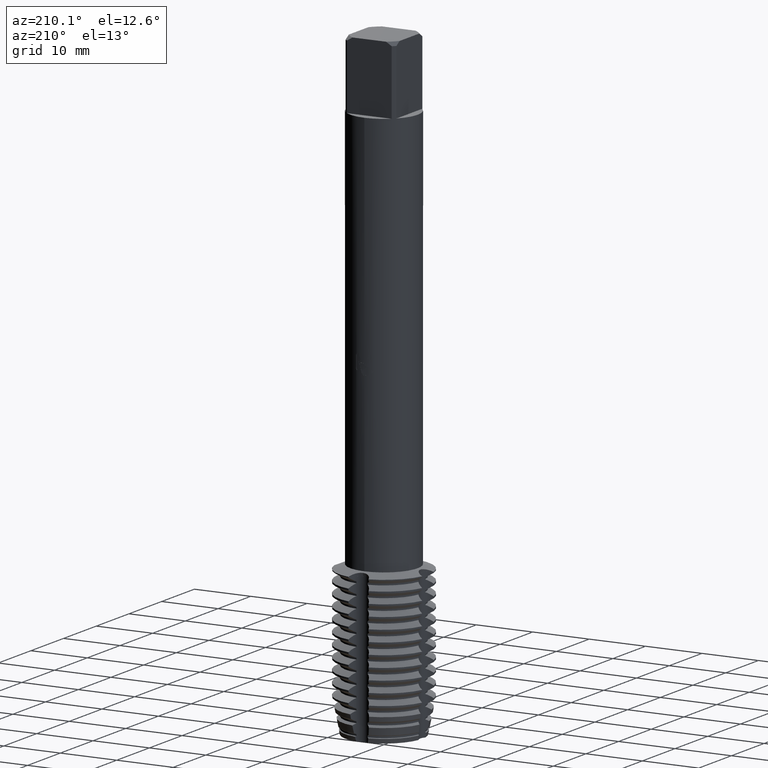
[diagram: clean part render]
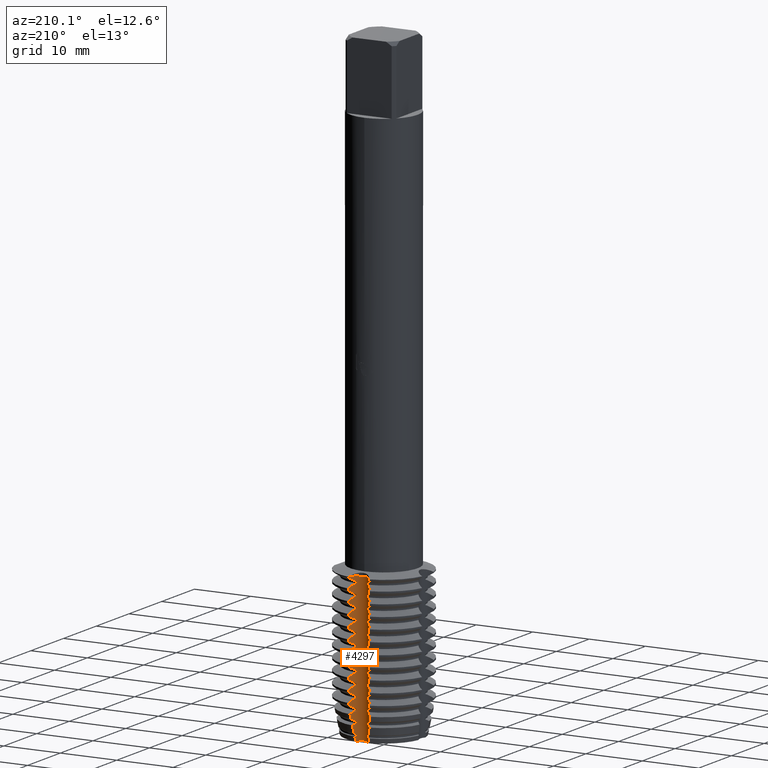
[diagram: same view with one face highlighted and labeled with its STEP entity id]
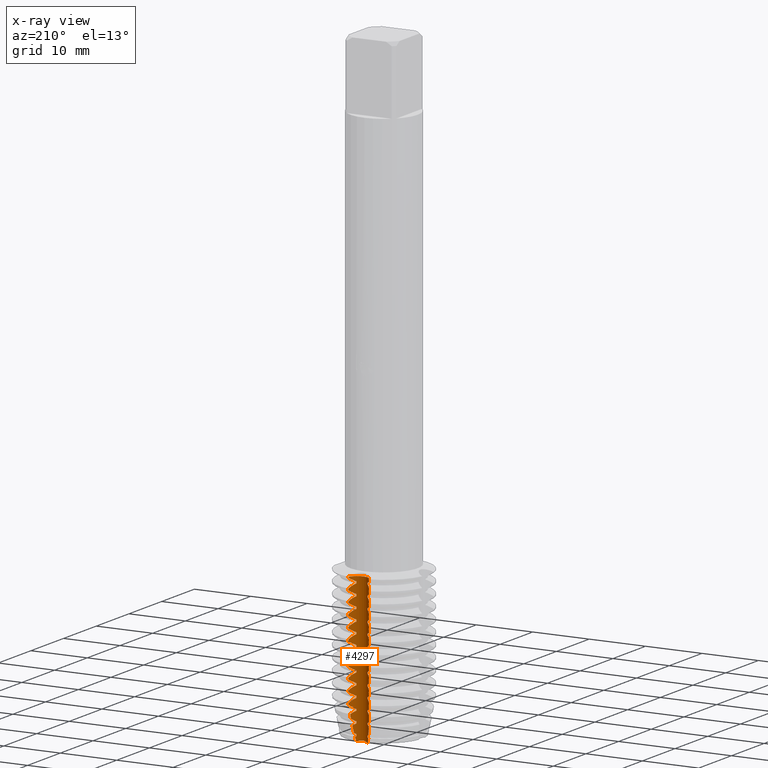
[diagram: x-ray of the same camera — body ghosted, the highlighted face saturated]
A machine part, auxiliary view. The second image highlights one B-rep face of the part: STEP entity #4297.
The next image is the same camera in x-ray: the body ghosted, the highlighted face saturated — about 0% of this face is hidden behind the body in this view.
In plain terms, the highlighted cylindrical surface (edge-blend (fillet) strip) has radius 1.8353 mm, axis along (-0, -0, 1).
Its self-contained STEP definition (entity closure, byte-faithful):
#1637=EDGE_CURVE('',#2603,#4271,#4864,.T.);
#1647=VERTEX_POINT('',#4874);
#1653=VERTEX_POINT('',#4881);
#1681=VERTEX_POINT('',#4912);
#1701=VERTEX_POINT('',#4932);
#1709=EDGE_CURVE('',#4333,#3361,#4940,.T.);
#1715=VERTEX_POINT('',#4946);
#1745=VERTEX_POINT('',#4976);
#1835=VERTEX_POINT('',#5076);
#1859=EDGE_CURVE('',#4671,#4841,#5104,.T.);
#1881=VERTEX_POINT('',#5126);
#1895=EDGE_CURVE('',#3109,#3885,#5141,.T.);
#1907=EDGE_CURVE('',#1745,#4733,#5155,.T.);
#1921=VERTEX_POINT('',#5170);
#1933=EDGE_CURVE('',#4731,#1965,#5183,.T.);
#1965=VERTEX_POINT('',#5220);
#1985=EDGE_CURVE('',#3277,#2603,#5243,.T.);
#2009=VERTEX_POINT('',#5268);
#2019=VERTEX_POINT('',#5278);
#2035=VERTEX_POINT('',#5295);
#2045=EDGE_CURVE('',#3753,#3687,#5307,.T.);
#2069=EDGE_CURVE('',#3199,#4333,#5334,.T.);
#2073=EDGE_CURVE('',#4489,#3331,#5338,.T.);
#2087=EDGE_CURVE('',#2991,#3783,#5353,.T.);
#2105=VERTEX_POINT('',#5373);
#2121=VERTEX_POINT('',#5390);
#2131=EDGE_CURVE('',#4733,#3109,#5400,.T.);
#2141=EDGE_CURVE('',#4177,#2791,#5410,.T.);
#2143=EDGE_CURVE('',#2239,#4567,#5412,.T.);
#2147=EDGE_CURVE('',#2019,#2601,#5416,.T.);
#2151=EDGE_CURVE('',#3825,#4243,#5421,.T.);
#2167=VERTEX_POINT('',#5438);
#2173=EDGE_CURVE('',#3229,#2771,#5445,.T.);
#2191=VERTEX_POINT('',#5464);
#2197=VERTEX_POINT('',#5471);
#2219=EDGE_CURVE('',#2687,#3825,#5494,.T.);
#2229=VERTEX_POINT('',#5505);
#2239=VERTEX_POINT('',#5516);
#2243=EDGE_CURVE('',#3293,#3437,#5520,.T.);
#2259=VERTEX_POINT('',#5536);
#2305=VERTEX_POINT('',#5588);
#2311=EDGE_CURVE('',#3131,#4453,#5595,.T.);
#2313=EDGE_CURVE('',#2601,#2453,#5597,.T.);
#2317=EDGE_CURVE('',#4007,#1701,#5601,.T.);
#2331=EDGE_CURVE('',#3271,#2809,#5620,.T.);
#2413=VERTEX_POINT('',#5705);
#2429=EDGE_CURVE('',#2771,#2239,#5722,.T.);
#2441=EDGE_CURVE('',#2305,#1681,#5735,.T.);
#2445=EDGE_CURVE('',#3209,#3863,#5739,.T.);
#2453=VERTEX_POINT('',#5747);
#2473=EDGE_CURVE('',#3975,#3499,#5771,.T.);
#2505=EDGE_CURVE('',#3499,#4823,#5804,.T.);
#2519=EDGE_CURVE('',#2035,#2105,#5821,.T.);
#2523=VERTEX_POINT('',#5825);
#2527=EDGE_CURVE('',#4631,#3927,#5829,.T.);
#2561=VERTEX_POINT('',#5869);
#2583=EDGE_CURVE('',#2985,#4731,#5893,.T.);
#2601=VERTEX_POINT('',#5912);
#2603=VERTEX_POINT('',#5914);
#2617=EDGE_CURVE('',#4483,#2523,#5929,.T.);
#2623=EDGE_CURVE('',#3201,#3343,#5936,.T.);
#2629=EDGE_CURVE('',#3041,#4177,#5942,.T.);
#2645=VERTEX_POINT('',#5959);
#2651=VERTEX_POINT('',#5965);
#2683=EDGE_CURVE('',#4823,#2991,#5999,.T.);
#2685=EDGE_CURVE('',#2121,#1647,#6001,.T.);
#2687=VERTEX_POINT('',#6003);
#2717=EDGE_CURVE('',#3965,#2167,#6037,.T.);
#2729=EDGE_CURVE('',#4735,#4763,#6052,.T.);
#2771=VERTEX_POINT('',#6102);
#2775=VERTEX_POINT('',#6106);
#2791=VERTEX_POINT('',#6124);
#2797=EDGE_CURVE('',#2197,#3755,#6130,.T.);
#2809=VERTEX_POINT('',#6142);
#2849=VERTEX_POINT('',#6187);
#2853=VERTEX_POINT('',#6191);
#2857=VERTEX_POINT('',#6195);
#2861=VERTEX_POINT('',#6199);
#2875=EDGE_CURVE('',#4753,#2035,#6215,.T.);
#2893=VERTEX_POINT('',#6235);
#2923=EDGE_CURVE('',#4391,#3661,#6267,.T.);
#2925=EDGE_CURVE('',#3343,#1835,#6269,.T.);
#2931=EDGE_CURVE('',#2259,#4045,#6275,.T.);
#2985=VERTEX_POINT('',#6334);
#2989=VERTEX_POINT('',#6338);
#2991=VERTEX_POINT('',#6340);
#3025=VERTEX_POINT('',#6376);
#3027=EDGE_CURVE('',#2809,#4391,#6378,.T.);
#3041=VERTEX_POINT('',#6393);
#3055=EDGE_CURVE('',#3687,#2849,#6408,.T.);
#3069=EDGE_CURVE('',#4841,#3271,#6422,.T.);
#3081=EDGE_CURVE('',#4455,#1653,#6436,.T.);
#3109=VERTEX_POINT('',#6465);
#3111=VERTEX_POINT('',#6467);
#3131=VERTEX_POINT('',#6488);
#3185=EDGE_CURVE('',#4767,#3277,#6544,.T.);
#3195=EDGE_CURVE('',#1647,#3915,#6556,.T.);
#3197=EDGE_CURVE('',#3755,#3267,#6558,.T.);
#3199=VERTEX_POINT('',#6560);
#3201=VERTEX_POINT('',#6562);
#3209=VERTEX_POINT('',#6572);
#3219=EDGE_CURVE('',#4271,#3025,#6585,.T.);
#3221=EDGE_CURVE('',#2893,#3041,#6587,.T.);
#3229=VERTEX_POINT('',#6595);
#3235=EDGE_CURVE('',#2651,#1715,#6601,.T.);
#3245=EDGE_CURVE('',#4669,#2651,#6612,.T.);
#3267=VERTEX_POINT('',#6634);
#3271=VERTEX_POINT('',#6639);
#3277=VERTEX_POINT('',#6647);
#3293=VERTEX_POINT('',#6664);
#3303=EDGE_CURVE('',#2857,#2191,#6674,.T.);
#3305=EDGE_CURVE('',#2413,#4455,#6676,.T.);
#3307=VERTEX_POINT('',#6678);
#3331=VERTEX_POINT('',#6706);
#3343=VERTEX_POINT('',#6718);
#3361=VERTEX_POINT('',#6736);
#3381=EDGE_CURVE('',#1965,#2197,#6758,.T.);
#3399=EDGE_CURVE('',#3361,#2985,#6777,.T.);
#3401=EDGE_CURVE('',#2561,#3583,#6779,.T.);
#3423=EDGE_CURVE('',#4723,#2645,#6801,.T.);
#3437=VERTEX_POINT('',#6817);
#3459=EDGE_CURVE('',#4183,#2009,#6842,.T.);
#3499=VERTEX_POINT('',#6887);
#3525=VERTEX_POINT('',#6915);
#3543=EDGE_CURVE('',#3927,#4433,#6934,.T.);
#3545=EDGE_CURVE('',#1881,#4183,#6936,.T.);
#3583=VERTEX_POINT('',#6975);
#3587=EDGE_CURVE('',#4301,#4447,#6979,.T.);
#3623=EDGE_CURVE('',#2989,#3131,#7016,.T.);
#3661=VERTEX_POINT('',#7058);
#3687=VERTEX_POINT('',#7089);
#3693=EDGE_CURVE('',#2849,#4483,#7096,.T.);
#3723=EDGE_CURVE('',#2645,#2861,#7127,.T.);
#3733=EDGE_CURVE('',#2009,#2857,#7138,.T.);
#3739=EDGE_CURVE('',#4447,#2229,#7145,.T.);
#3753=VERTEX_POINT('',#7160);
#3755=VERTEX_POINT('',#7162);
#3773=VERTEX_POINT('',#7181);
#3779=EDGE_CURVE('',#3025,#3201,#7187,.T.);
#3783=VERTEX_POINT('',#7192);
#3793=EDGE_CURVE('',#2191,#3111,#7202,.T.);
#3825=VERTEX_POINT('',#7239);
#3837=EDGE_CURVE('',#1681,#4671,#7253,.T.);
#3849=VERTEX_POINT('',#7265);
#3863=VERTEX_POINT('',#7280);
#3885=VERTEX_POINT('',#7304);
#3899=EDGE_CURVE('',#4693,#4135,#7319,.T.);
#3907=EDGE_CURVE('',#1715,#2305,#7327,.T.);
#3915=VERTEX_POINT('',#7335);
#3927=VERTEX_POINT('',#7347);
#3949=EDGE_CURVE('',#3863,#2853,#7369,.T.);
#3965=VERTEX_POINT('',#7387);
#3975=VERTEX_POINT('',#7397);
#3979=EDGE_CURVE('',#3331,#3773,#7402,.T.);
#3987=EDGE_CURVE('',#2853,#3293,#7410,.T.);
#4007=VERTEX_POINT('',#7431);
#4045=VERTEX_POINT('',#7472);
#4051=EDGE_CURVE('',#1921,#4669,#7478,.T.);
#4059=EDGE_CURVE('',#2861,#3849,#7487,.T.);
#4077=EDGE_CURVE('',#4045,#4735,#7508,.T.);
#4083=EDGE_CURVE('',#2167,#3753,#7514,.T.);
#4113=VERTEX_POINT('',#7547);
#4129=EDGE_CURVE('',#4567,#4007,#7564,.T.);
#4135=VERTEX_POINT('',#7571);
#4139=EDGE_CURVE('',#4135,#3307,#7575,.T.);
#4177=VERTEX_POINT('',#7616);
#4183=VERTEX_POINT('',#7622);
#4187=EDGE_CURVE('',#2775,#3199,#7626,.T.);
#4193=EDGE_CURVE('',#4243,#4693,#7632,.T.);
#4201=EDGE_CURVE('',#1701,#4767,#7641,.T.);
#4203=EDGE_CURVE('',#3111,#1745,#7643,.T.);
#4205=EDGE_CURVE('',#3661,#2775,#7645,.T.);
#4219=EDGE_CURVE('',#3267,#2121,#7659,.T.);
#4229=EDGE_CURVE('',#2523,#3975,#7670,.T.);
#4243=VERTEX_POINT('',#7684);
#4271=VERTEX_POINT('',#7717);
#4297=ADVANCED_FACE('',(#7748),#7749,.F.);
#4301=VERTEX_POINT('',#7753);
#4309=EDGE_CURVE('',#4113,#3209,#7762,.T.);
#4333=VERTEX_POINT('',#7790);
#4341=EDGE_CURVE('',#3525,#4489,#7798,.T.);
#4391=VERTEX_POINT('',#7854);
#4433=VERTEX_POINT('',#7900);
#4439=EDGE_CURVE('',#1835,#2561,#7906,.T.);
#4445=EDGE_CURVE('',#3885,#4631,#7914,.T.);
#4447=VERTEX_POINT('',#7916);
#4453=VERTEX_POINT('',#7923);
#4455=VERTEX_POINT('',#7925);
#4483=VERTEX_POINT('',#7956);
#4485=EDGE_CURVE('',#3915,#2259,#7958,.T.);
#4489=VERTEX_POINT('',#7962);
#4495=EDGE_CURVE('',#3583,#2893,#7968,.T.);
#4499=EDGE_CURVE('',#2453,#3525,#7972,.T.);
#4509=VERTEX_POINT('',#7982);
#4511=EDGE_CURVE('',#4453,#1881,#7984,.T.);
#4567=VERTEX_POINT('',#8046);
#4585=EDGE_CURVE('',#4509,#3229,#8064,.T.);
#4587=EDGE_CURVE('',#3437,#2019,#8066,.T.);
#4603=EDGE_CURVE('',#4763,#4753,#8084,.T.);
#4631=VERTEX_POINT('',#8112);
#4661=EDGE_CURVE('',#1653,#4509,#8147,.T.);
#4663=EDGE_CURVE('',#3307,#4723,#8149,.T.);
#4665=EDGE_CURVE('',#2229,#2687,#8151,.T.);
#4669=VERTEX_POINT('',#8155);
#4671=VERTEX_POINT('',#8157);
#4675=EDGE_CURVE('',#4743,#2989,#8162,.T.);
#4693=VERTEX_POINT('',#8182);
#4721=EDGE_CURVE('',#2791,#1921,#8214,.T.);
#4723=VERTEX_POINT('',#8216);
#4731=VERTEX_POINT('',#8224);
#4733=VERTEX_POINT('',#8226);
#4735=VERTEX_POINT('',#8228);
#4743=VERTEX_POINT('',#8236);
#4753=VERTEX_POINT('',#8248);
#4763=VERTEX_POINT('',#8259);
#4765=EDGE_CURVE('',#4433,#3965,#8261,.T.);
#4767=VERTEX_POINT('',#8263);
#4793=EDGE_CURVE('',#3773,#4743,#8292,.T.);
#4823=VERTEX_POINT('',#8324);
#4833=EDGE_CURVE('',#2105,#4113,#8335,.T.);
#4837=EDGE_CURVE('',#3783,#4301,#8339,.T.);
#4839=EDGE_CURVE('',#3849,#2413,#8341,.T.);
#4841=VERTEX_POINT('',#8343);
#4864=LINE('',#8359,#8360);
#4874=CARTESIAN_POINT('',(1.47685716090406,7.15819143750356,-107.455228920657));
#4881=CARTESIAN_POINT('',(-1.77972067254717,7.79952526297006,-91.8542043901478));
#4912=CARTESIAN_POINT('',(-0.987271720808468,6.70065844147364,-104.854204390148));
#4932=CARTESIAN_POINT('',(-0.987271720808468,6.70065844147364,-95.1457956098521));
#4940=B_SPLINE_CURVE_WITH_KNOTS('',3,(#8499,#8500,#8501,#8502,#8503,#8504),.UNSPECIFIED.,.F.,.F.,(4,2,4),(3.84345972816228,4.425826653265,5.1202742648723),.UNSPECIFIED.);
#4946=CARTESIAN_POINT('',(-1.77972067254717,7.79952526297006,-104.0));
#4976=CARTESIAN_POINT('',(1.77972067254717,7.79952526297006,-92.1457956098522));
#5076=CARTESIAN_POINT('',(-0.987271720808468,6.70065844147364,-99.1457956098522));
#5104=B_SPLINE_CURVE_WITH_KNOTS('',3,(#8806,#8807,#8808,#8809,#8810,#8811,#8812,#8813),.UNSPECIFIED.,.F.,.F.,(4,2,2,4),(4.7596521569686,5.34201908207132,6.03646669367862,6.73091430528592),.UNSPECIFIED.);
#5126=CARTESIAN_POINT('',(0.987271720808469,6.70065844147364,-95.1457956098521));
#5141=LINE('',#8897,#8898);
#5155=LINE('',#8916,#8917);
#5170=CARTESIAN_POINT('',(-0.987271720808468,6.70065844147364,-102.854204390148));
#5183=B_SPLINE_CURVE_WITH_KNOTS('',3,(#8954,#8955,#8956,#8957,#8958,#8959,#8960,#8961,#8962,#8963,#8964,#8965,#8966,#8967),.UNSPECIFIED.,.F.,.F.,(4,2,2,2,2,2,4),(2.39529792558418,2.97982352121849,3.27208631903565,3.5643491168528,3.85661191466996,4.14887471248711,4.73340030812142),.UNSPECIFIED.);
#5220=CARTESIAN_POINT('',(1.02125189306256,6.72287472521362,-110.0));
#5243=B_SPLINE_CURVE_WITH_KNOTS('',3,(#9105,#9106,#9107,#9108,#9109,#9110,#9111,#9112),.UNSPECIFIED.,.F.,.F.,(4,2,2,4),(2.19973205003222,2.89417966163952,3.58862727324682,4.17099419834953),.UNSPECIFIED.);
#5268=CARTESIAN_POINT('',(1.77972067254717,7.79952526297006,-94.1457956098522));
#5278=CARTESIAN_POINT('',(0.987271720808469,6.70065844147364,-100.854204390148));
#5295=CARTESIAN_POINT('',(1.77137772765112,7.76761591271752,-104.164828348079));
#5307=B_SPLINE_CURVE_WITH_KNOTS('',3,(#9241,#9242,#9243,#9244,#9245,#9246,#9247,#9248),.UNSPECIFIED.,.F.,.F.,(4,2,2,4),(2.19973205003222,2.89417966163952,3.58862727324682,4.17099419834953),.UNSPECIFIED.);
#5334=LINE('',#9313,#9314);
#5338=B_SPLINE_CURVE_WITH_KNOTS('',3,(#9327,#9328,#9329,#9330,#9331,#9332,#9333,#9334),.UNSPECIFIED.,.F.,.F.,(4,2,2,4),(5.33572804855496,5.91809497365768,6.61254258526498,7.30699019687228),.UNSPECIFIED.);
#5353=CIRCLE('',#9368,1.83530850904129);
#5373=CARTESIAN_POINT('',(1.77972067254717,7.79952526297006,-104.0));
#5390=CARTESIAN_POINT('',(1.29124223360371,6.94355818513051,-108.687004242016));
#5400=B_SPLINE_CURVE_WITH_KNOTS('',3,(#9468,#9469,#9470,#9471,#9472,#9473,#9474,#9475),.UNSPECIFIED.,.F.,.F.,(4,2,2,4),(2.19973205003222,2.89417966163952,3.58862727324682,4.17099419834953),.UNSPECIFIED.);
#5410=LINE('',#9490,#9491);
#5412=LINE('',#9494,#9495);
#5416=B_SPLINE_CURVE_WITH_KNOTS('',3,(#9501,#9502,#9503,#9504,#9505,#9506,#9507,#9508),.UNSPECIFIED.,.F.,.F.,(4,2,2,4),(5.33572804855496,5.91809497365768,6.61254258526498,7.30699019687228),.UNSPECIFIED.);
#5421=B_SPLINE_CURVE_WITH_KNOTS('',3,(#9514,#9515,#9516,#9517,#9518,#9519,#9520,#9521),.UNSPECIFIED.,.F.,.F.,(4,2,2,4),(2.19973205003222,2.89417966163952,3.58862727324682,4.17099419834954),.UNSPECIFIED.);
#5438=CARTESIAN_POINT('',(1.77972067254717,7.79952526297006,-88.1457956098522));
#5445=LINE('',#9570,#9571);
#5464=CARTESIAN_POINT('',(0.987271720808469,6.70065844147364,-93.1457956098522));
#5471=CARTESIAN_POINT('',(1.18722661182801,6.84821224301352,-109.248195027742));
#5494=LINE('',#9648,#9649);
#5505=CARTESIAN_POINT('',(-0.987271720808468,6.70065844147364,-85.1457956098522));
#5516=CARTESIAN_POINT('',(-1.77972067254717,7.79952526297006,-93.8542043901478));
#5520=B_SPLINE_CURVE_WITH_KNOTS('',3,(#9682,#9683,#9684,#9685,#9686,#9687,#9688,#9689),.UNSPECIFIED.,.F.,.F.,(4,2,2,4),(2.19973205003222,2.89417966163952,3.58862727324682,4.17099419834953),.UNSPECIFIED.);
#5536=CARTESIAN_POINT('',(0.987271720808469,6.70065844147364,-106.854204390148));
#5588=CARTESIAN_POINT('',(-1.77137772765111,7.76761591271752,-104.164828348079));
#5595=LINE('',#9818,#9819);
#5597=LINE('',#9822,#9823);
#5601=LINE('',#9828,#9829);
#5620=B_SPLINE_CURVE_WITH_KNOTS('',3,(#9855,#9856,#9857,#9858,#9859,#9860,#9861,#9862),.UNSPECIFIED.,.F.,.F.,(4,2,2,4),(1.40545723121846,2.09990484282576,2.79435245443306,3.37671937953577),.UNSPECIFIED.);
#5705=CARTESIAN_POINT('',(-0.987271720808468,6.70065844147364,-90.8542043901478));
#5722=B_SPLINE_CURVE_WITH_KNOTS('',3,(#10061,#10062,#10063,#10064,#10065,#10066,#10067,#10068),.UNSPECIFIED.,.F.,.F.,(4,2,2,4),(5.33572804855496,5.91809497365768,6.61254258526498,7.30699019687228),.UNSPECIFIED.);
#5735=B_SPLINE_CURVE_WITH_KNOTS('',3,(#10090,#10091,#10092,#10093,#10094,#10095,#10096,#10097),.UNSPECIFIED.,.F.,.F.,(4,2,2,4),(2.13275528768351,2.82720289929081,3.52165051089811,4.10401743600082),.UNSPECIFIED.);
#5739=LINE('',#10104,#10105);
#5747=CARTESIAN_POINT('',(1.77972067254717,7.79952526297006,-99.8542043901478));
#5771=LINE('',#10167,#10168);
#5804=B_SPLINE_CURVE_WITH_KNOTS('',3,(#10216,#10217,#10218,#10219,#10220,#10221,#10222,#10223),.UNSPECIFIED.,.F.,.F.,(4,2,2,4),(5.33572804855497,5.91809497365768,6.61254258526498,7.30699019687228),.UNSPECIFIED.);
#5821=B_SPLINE_CURVE_WITH_KNOTS('',3,(#10243,#10244,#10245,#10246,#10247,#10248),.UNSPECIFIED.,.F.,.F.,(4,2,4),(0.0,1.30994046249114,2.07000009345786),.UNSPECIFIED.);
#5825=CARTESIAN_POINT('',(1.77972067254717,7.79952526297006,-85.8542043901478));
#5829=LINE('',#10259,#10260);
#5869=CARTESIAN_POINT('',(-1.77972067254717,7.79952526297006,-99.8542043901478));
#5893=B_SPLINE_CURVE_WITH_KNOTS('',3,(#10340,#10341,#10342,#10343,#10344,#10345,#10346,#10347,#10348,#10349,#10350,#10351,#10352,#10353),.UNSPECIFIED.,.F.,.F.,(4,2,2,2,2,2,4),(2.39529792558418,2.97982352121849,3.27208631903565,3.5643491168528,3.85661191466996,4.14887471248711,4.73340030812142),.UNSPECIFIED.);
#5912=CARTESIAN_POINT('',(1.77972067254717,7.79952526297006,-100.145795609852));
#5914=CARTESIAN_POINT('',(-0.987271720808468,6.70065844147364,-96.8542043901479));
#5929=LINE('',#10407,#10408);
#5936=B_SPLINE_CURVE_WITH_KNOTS('',3,(#10416,#10417,#10418,#10419,#10420,#10421,#10422,#10423),.UNSPECIFIED.,.F.,.F.,(4,2,2,4),(2.19973205003222,2.89417966163952,3.58862727324682,4.17099419834953),.UNSPECIFIED.);
#5942=B_SPLINE_CURVE_WITH_KNOTS('',3,(#10434,#10435,#10436,#10437,#10438,#10439,#10440,#10441),.UNSPECIFIED.,.F.,.F.,(4,2,2,4),(5.33572804855496,5.91809497365768,6.61254258526498,7.30699019687228),.UNSPECIFIED.);
#5959=CARTESIAN_POINT('',(-0.987271720808468,6.70065844147364,-89.1457956098522));
#5965=CARTESIAN_POINT('',(-1.77972067254717,7.79952526297006,-103.854204390148));
#5999=LINE('',#10550,#10551);
#6001=B_SPLINE_CURVE_WITH_KNOTS('',3,(#10554,#10555,#10556,#10557,#10558,#10559),.UNSPECIFIED.,.F.,.F.,(4,2,4),(0.0,1.55716454179974,3.11432908359949),.UNSPECIFIED.);
#6003=CARTESIAN_POINT('',(-1.77972067254717,7.79952526297006,-85.8542043901478));
#6037=B_SPLINE_CURVE_WITH_KNOTS('',3,(#10624,#10625,#10626,#10627,#10628,#10629,#10630,#10631),.UNSPECIFIED.,.F.,.F.,(4,2,2,4),(5.33572804855497,5.91809497365768,6.61254258526498,7.30699019687228),.UNSPECIFIED.);
#6052=B_SPLINE_CURVE_WITH_KNOTS('',3,(#10667,#10668,#10669,#10670,#10671,#10672,#10673,#10674),.UNSPECIFIED.,.F.,.F.,(4,2,2,4),(1.62365615844586,2.31810377005316,3.01255138166046,3.59491830676317),.UNSPECIFIED.);
#6102=CARTESIAN_POINT('',(-0.987271720808468,6.70065844147364,-93.1457956098522));
#6106=CARTESIAN_POINT('',(-1.29124223360371,6.94355818513051,-108.687004242016));
#6124=CARTESIAN_POINT('',(-1.77972067254717,7.79952526297006,-102.145795609852));
#6130=B_SPLINE_CURVE_WITH_KNOTS('',3,(#10808,#10809,#10810,#10811,#10812,#10813),.UNSPECIFIED.,.F.,.F.,(4,2,4),(1.40191134124684,2.09635895285414,2.67872587795685),.UNSPECIFIED.);
#6142=CARTESIAN_POINT('',(-0.987271720808468,6.70065844147364,-106.854204390148));
#6187=CARTESIAN_POINT('',(0.987271720808469,6.70065844147364,-86.8542043901478));
#6191=CARTESIAN_POINT('',(1.77972067254717,7.79952526297006,-102.145795609852));
#6195=CARTESIAN_POINT('',(1.77972067254717,7.79952526297006,-93.8542043901478));
#6199=CARTESIAN_POINT('',(-1.77972067254717,7.79952526297006,-89.8542043901478));
#6215=B_SPLINE_CURVE_WITH_KNOTS('',3,(#10966,#10967,#10968,#10969,#10970,#10971,#10972,#10973),.UNSPECIFIED.,.F.,.F.,(4,2,2,4),(5.26875128620625,5.85111821130897,6.54556582291627,7.24001343452357),.UNSPECIFIED.);
#6235=CARTESIAN_POINT('',(-0.987271720808468,6.70065844147364,-100.854204390148));
#6267=B_SPLINE_CURVE_WITH_KNOTS('',3,(#11057,#11058,#11059,#11060,#11061,#11062),.UNSPECIFIED.,.F.,.F.,(4,2,4),(4.27190845575309,4.85427538085581,5.54872299246311),.UNSPECIFIED.);
#6269=LINE('',#11065,#11066);
#6275=B_SPLINE_CURVE_WITH_KNOTS('',3,(#11088,#11089,#11090,#11091,#11092,#11093,#11094,#11095),.UNSPECIFIED.,.F.,.F.,(4,2,2,4),(4.5414532297412,5.12382015484392,5.81826776645122,6.51271537805852),.UNSPECIFIED.);
#6334=CARTESIAN_POINT('',(-1.02125189306256,6.72287472521362,-110.0));
#6338=CARTESIAN_POINT('',(0.987271720808469,6.70065844147364,-96.8542043901479));
#6340=CARTESIAN_POINT('',(1.77972067254717,7.79952526297007,-84.0));
#6376=CARTESIAN_POINT('',(-1.77972067254717,7.79952526297006,-97.8542043901478));
#6378=LINE('',#11271,#11272);
#6393=CARTESIAN_POINT('',(-0.987271720808468,6.70065844147364,-101.145795609852));
#6408=LINE('',#11343,#11344);
#6422=B_SPLINE_CURVE_WITH_KNOTS('',3,(#11382,#11383,#11384,#11385,#11386,#11387),.UNSPECIFIED.,.F.,.F.,(4,2,4),(0.0,1.32340287079752,2.64680574159505),.UNSPECIFIED.);
#6436=B_SPLINE_CURVE_WITH_KNOTS('',3,(#11426,#11427,#11428,#11429,#11430,#11431,#11432,#11433),.UNSPECIFIED.,.F.,.F.,(4,2,2,4),(5.33572804855496,5.91809497365768,6.61254258526498,7.30699019687228),.UNSPECIFIED.);
#6465=CARTESIAN_POINT('',(0.987271720808469,6.70065844147364,-91.1457956098522));
#6467=CARTESIAN_POINT('',(0.987271720808469,6.70065844147364,-92.8542043901478));
#6488=CARTESIAN_POINT('',(1.77972067254717,7.79952526297006,-96.1457956098522));
#6544=LINE('',#11679,#11680);
#6556=B_SPLINE_CURVE_WITH_KNOTS('',3,(#11701,#11702,#11703,#11704,#11705,#11706),.UNSPECIFIED.,.F.,.F.,(4,2,4),(1.83036006883765,2.52480768044495,3.10717460554767),.UNSPECIFIED.);
#6558=LINE('',#11709,#11710);
#6560=CARTESIAN_POINT('',(-0.987271720808468,6.70065844147364,-108.854204390148));
#6562=CARTESIAN_POINT('',(-1.77972067254717,7.79952526297006,-98.1457956098522));
#6572=CARTESIAN_POINT('',(0.987271720808469,6.70065844147364,-103.145795609852));
#6585=B_SPLINE_CURVE_WITH_KNOTS('',3,(#11738,#11739,#11740,#11741,#11742,#11743,#11744,#11745),.UNSPECIFIED.,.F.,.F.,(4,2,2,4),(5.33572804855496,5.91809497365768,6.61254258526498,7.30699019687228),.UNSPECIFIED.);
#6587=LINE('',#11748,#11749);
#6595=CARTESIAN_POINT('',(-0.987271720808468,6.70065844147364,-92.8542043901478));
#6601=LINE('',#11766,#11767);
#6612=B_SPLINE_CURVE_WITH_KNOTS('',3,(#11782,#11783,#11784,#11785,#11786,#11787,#11788,#11789),.UNSPECIFIED.,.F.,.F.,(4,2,2,4),(5.33572804855496,5.91809497365768,6.61254258526498,7.30699019687228),.UNSPECIFIED.);
#6634=CARTESIAN_POINT('',(0.987271720808469,6.70065844147364,-108.854204390148));
#6639=CARTESIAN_POINT('',(-1.59688283551364,7.34318976060899,-106.425916295048));
#6647=CARTESIAN_POINT('',(-1.77972067254717,7.79952526297006,-96.1457956098522));
#6664=CARTESIAN_POINT('',(1.77972067254717,7.79952526297006,-101.854204390148));
#6674=B_SPLINE_CURVE_WITH_KNOTS('',3,(#11899,#11900,#11901,#11902,#11903,#11904,#11905,#11906),.UNSPECIFIED.,.F.,.F.,(4,2,2,4),(2.19973205003222,2.89417966163952,3.58862727324682,4.17099419834953),.UNSPECIFIED.);
#6676=LINE('',#11909,#11910);
#6678=CARTESIAN_POINT('',(-1.77972067254717,7.79952526297006,-88.1457956098522));
#6706=CARTESIAN_POINT('',(1.77972067254717,7.79952526297006,-98.1457956098522));
#6718=CARTESIAN_POINT('',(-0.987271720808468,6.70065844147364,-98.8542043901478));
#6736=CARTESIAN_POINT('',(-1.187226611828,6.84821224301352,-109.248195027742));
#6758=B_SPLINE_CURVE_WITH_KNOTS('',3,(#12044,#12045,#12046,#12047,#12048,#12049,#12050,#12051),.UNSPECIFIED.,.F.,.F.,(4,2,2,4),(0.0,0.673470999196106,1.34694199839221,2.69388399678442),.UNSPECIFIED.);
#6777=B_SPLINE_CURVE_WITH_KNOTS('',3,(#12077,#12078,#12079,#12080,#12081,#12082,#12083,#12084),.UNSPECIFIED.,.F.,.F.,(4,2,2,4),(0.0,1.34694199839221,2.02041299758832,2.69388399678442),.UNSPECIFIED.);
#6779=LINE('',#12087,#12088);
#6801=LINE('',#12133,#12134);
#6817=CARTESIAN_POINT('',(0.987271720808469,6.70065844147364,-101.145795609852));
#6842=B_SPLINE_CURVE_WITH_KNOTS('',3,(#12197,#12198,#12199,#12200,#12201,#12202,#12203,#12204),.UNSPECIFIED.,.F.,.F.,(4,2,2,4),(5.33572804855496,5.91809497365768,6.61254258526498,7.30699019687228),.UNSPECIFIED.);
#6887=CARTESIAN_POINT('',(0.987271720808469,6.70065844147364,-84.8542043901478));
#6915=CARTESIAN_POINT('',(0.987271720808469,6.70065844147364,-99.1457956098522));
#6934=B_SPLINE_CURVE_WITH_KNOTS('',3,(#12378,#12379,#12380,#12381,#12382,#12383,#12384,#12385),.UNSPECIFIED.,.F.,.F.,(4,2,2,4),(2.19973205003222,2.89417966163952,3.58862727324682,4.17099419834953),.UNSPECIFIED.);
#6936=LINE('',#12388,#12389);
#6975=CARTESIAN_POINT('',(-1.77972067254717,7.79952526297006,-100.145795609852));
#6979=B_SPLINE_CURVE_WITH_KNOTS('',3,(#12463,#12464,#12465,#12466,#12467,#12468,#12469,#12470),.UNSPECIFIED.,.F.,.F.,(4,2,2,4),(2.19973205003222,2.89417966163952,3.58862727324682,4.17099419834954),.UNSPECIFIED.);
#7016=B_SPLINE_CURVE_WITH_KNOTS('',3,(#12526,#12527,#12528,#12529,#12530,#12531,#12532,#12533),.UNSPECIFIED.,.F.,.F.,(4,2,2,4),(5.33572804855496,5.91809497365768,6.61254258526498,7.30699019687228),.UNSPECIFIED.);
#7058=CARTESIAN_POINT('',(-1.47685716090405,7.15819143750356,-107.455228920657));
#7089=CARTESIAN_POINT('',(0.987271720808469,6.70065844147364,-87.1457956098522));
#7096=B_SPLINE_CURVE_WITH_KNOTS('',3,(#12661,#12662,#12663,#12664,#12665,#12666,#12667,#12668),.UNSPECIFIED.,.F.,.F.,(4,2,2,4),(5.33572804855497,5.91809497365768,6.61254258526498,7.30699019687228),.UNSPECIFIED.);
#7127=B_SPLINE_CURVE_WITH_KNOTS('',3,(#12717,#12718,#12719,#12720,#12721,#12722,#12723,#12724),.UNSPECIFIED.,.F.,.F.,(4,2,2,4),(5.33572804855496,5.91809497365768,6.61254258526498,7.30699019687228),.UNSPECIFIED.);
#7138=LINE('',#12736,#12737);
#7145=LINE('',#12746,#12747);
#7160=CARTESIAN_POINT('',(1.77972067254717,7.79952526297006,-87.8542043901478));
#7162=CARTESIAN_POINT('',(0.987271720808469,6.70065844147364,-109.145795609852));
#7181=CARTESIAN_POINT('',(1.77972067254717,7.79952526297006,-97.8542043901478));
#7187=LINE('',#12821,#12822);
#7192=CARTESIAN_POINT('',(-1.77972067254717,7.79952526297007,-84.0));
#7202=LINE('',#12848,#12849);
#7239=CARTESIAN_POINT('',(-1.77972067254717,7.79952526297006,-86.1457956098522));
#7253=LINE('',#12920,#12921);
#7265=CARTESIAN_POINT('',(-1.77972067254717,7.79952526297006,-90.1457956098522));
#7280=CARTESIAN_POINT('',(0.987271720808469,6.70065844147364,-102.854204390148));
#7304=CARTESIAN_POINT('',(0.987271720808469,6.70065844147364,-90.8542043901478));
#7319=B_SPLINE_CURVE_WITH_KNOTS('',3,(#13051,#13052,#13053,#13054,#13055,#13056,#13057,#13058),.UNSPECIFIED.,.F.,.F.,(4,2,2,4),(5.33572804855496,5.91809497365768,6.61254258526498,7.30699019687228),.UNSPECIFIED.);
#7327=B_SPLINE_CURVE_WITH_KNOTS('',3,(#13076,#13077,#13078,#13079,#13080,#13081),.UNSPECIFIED.,.F.,.F.,(4,2,4),(0.0,0.760059630966725,2.07000009345786),.UNSPECIFIED.);
#7335=CARTESIAN_POINT('',(0.987271720808469,6.70065844147364,-107.145795609852));
#7347=CARTESIAN_POINT('',(1.77972067254717,7.79952526297006,-89.8542043901478));
#7369=B_SPLINE_CURVE_WITH_KNOTS('',3,(#13172,#13173,#13174,#13175,#13176,#13177,#13178,#13179),.UNSPECIFIED.,.F.,.F.,(4,2,2,4),(5.33572804855496,5.91809497365768,6.61254258526498,7.30699019687228),.UNSPECIFIED.);
#7387=CARTESIAN_POINT('',(0.987271720808469,6.70065844147364,-88.8542043901478));
#7397=CARTESIAN_POINT('',(0.987271720808469,6.70065844147364,-85.1457956098522));
#7402=LINE('',#13240,#13241);
#7410=LINE('',#13252,#13253);
#7431=CARTESIAN_POINT('',(-0.987271720808468,6.70065844147364,-94.8542043901478));
#7472=CARTESIAN_POINT('',(1.59688283551364,7.34318976060899,-106.425916295048));
#7478=LINE('',#13379,#13380);
#7487=LINE('',#13399,#13400);
#7508=B_SPLINE_CURVE_WITH_KNOTS('',3,(#13425,#13426,#13427,#13428,#13429,#13430),.UNSPECIFIED.,.F.,.F.,(4,2,4),(0.0,1.32340287079752,2.64680574159505),.UNSPECIFIED.);
#7514=LINE('',#13443,#13444);
#7547=CARTESIAN_POINT('',(1.77972067254717,7.79952526297006,-103.854204390148));
#7564=B_SPLINE_CURVE_WITH_KNOTS('',3,(#13545,#13546,#13547,#13548,#13549,#13550,#13551,#13552),.UNSPECIFIED.,.F.,.F.,(4,2,2,4),(2.19973205003222,2.89417966163952,3.58862727324682,4.17099419834953),.UNSPECIFIED.);
#7571=CARTESIAN_POINT('',(-1.77972067254717,7.79952526297006,-87.8542043901478));
#7575=LINE('',#13572,#13573);
#7616=CARTESIAN_POINT('',(-1.77972067254717,7.79952526297006,-101.854204390148));
#7622=CARTESIAN_POINT('',(0.987271720808469,6.70065844147364,-94.8542043901478));
#7626=B_SPLINE_CURVE_WITH_KNOTS('',3,(#13667,#13668,#13669,#13670,#13671,#13672),.UNSPECIFIED.,.F.,.F.,(4,2,4),(1.53193971069556,2.22638732230286,2.80875424740558),.UNSPECIFIED.);
#7632=LINE('',#13687,#13688);
#7641=B_SPLINE_CURVE_WITH_KNOTS('',3,(#13700,#13701,#13702,#13703,#13704,#13705,#13706,#13707),.UNSPECIFIED.,.F.,.F.,(4,2,2,4),(5.33572804855496,5.91809497365768,6.61254258526498,7.30699019687228),.UNSPECIFIED.);
#7643=B_SPLINE_CURVE_WITH_KNOTS('',3,(#13710,#13711,#13712,#13713,#13714,#13715,#13716,#13717),.UNSPECIFIED.,.F.,.F.,(4,2,2,4),(5.33572804855496,5.91809497365768,6.61254258526498,7.30699019687228),.UNSPECIFIED.);
#7645=B_SPLINE_CURVE_WITH_KNOTS('',3,(#13720,#13721,#13722,#13723,#13724,#13725),.UNSPECIFIED.,.F.,.F.,(4,2,4),(0.0,1.55716454179974,3.11432908359949),.UNSPECIFIED.);
#7659=B_SPLINE_CURVE_WITH_KNOTS('',3,(#13744,#13745,#13746,#13747,#13748,#13749),.UNSPECIFIED.,.F.,.F.,(4,2,4),(3.97348809761101,4.55585502271373,5.25030263432103),.UNSPECIFIED.);
#7670=B_SPLINE_CURVE_WITH_KNOTS('',3,(#13776,#13777,#13778,#13779,#13780,#13781,#13782,#13783),.UNSPECIFIED.,.F.,.F.,(4,2,2,4),(2.19973205003222,2.89417966163952,3.58862727324682,4.17099419834953),.UNSPECIFIED.);
#7684=CARTESIAN_POINT('',(-0.987271720808468,6.70065844147364,-86.8542043901478));
#7717=CARTESIAN_POINT('',(-0.987271720808468,6.70065844147364,-97.1457956098522));
#7748=FACE_OUTER_BOUND('',#13908,.T.);
#7749=CYLINDRICAL_SURFACE('',#13909,1.83530850904129);
#7753=CARTESIAN_POINT('',(-1.77972067254717,7.79952526297006,-84.1457956098522));
#7762=B_SPLINE_CURVE_WITH_KNOTS('',3,(#13928,#13929,#13930,#13931,#13932,#13933,#13934,#13935),.UNSPECIFIED.,.F.,.F.,(4,2,2,4),(2.19973205003222,2.89417966163952,3.58862727324682,4.17099419834953),.UNSPECIFIED.);
#7790=CARTESIAN_POINT('',(-0.987271720808468,6.70065844147364,-109.145795609852));
#7798=LINE('',#13998,#13999);
#7854=CARTESIAN_POINT('',(-0.987271720808468,6.70065844147364,-107.145795609852));
#7900=CARTESIAN_POINT('',(0.987271720808469,6.70065844147364,-89.1457956098522));
#7906=B_SPLINE_CURVE_WITH_KNOTS('',3,(#14185,#14186,#14187,#14188,#14189,#14190,#14191,#14192),.UNSPECIFIED.,.F.,.F.,(4,2,2,4),(5.33572804855496,5.91809497365768,6.61254258526498,7.30699019687228),.UNSPECIFIED.);
#7914=B_SPLINE_CURVE_WITH_KNOTS('',3,(#14201,#14202,#14203,#14204,#14205,#14206,#14207,#14208),.UNSPECIFIED.,.F.,.F.,(4,2,2,4),(5.33572804855497,5.91809497365768,6.61254258526498,7.30699019687228),.UNSPECIFIED.);
#7916=CARTESIAN_POINT('',(-0.987271720808468,6.70065844147364,-84.8542043901478));
#7923=CARTESIAN_POINT('',(1.77972067254717,7.79952526297006,-95.8542043901478));
#7925=CARTESIAN_POINT('',(-0.987271720808468,6.70065844147364,-91.1457956098522));
#7956=CARTESIAN_POINT('',(1.77972067254717,7.79952526297006,-86.1457956098522));
#7958=LINE('',#14292,#14293);
#7962=CARTESIAN_POINT('',(0.987271720808469,6.70065844147364,-98.8542043901478));
#7968=B_SPLINE_CURVE_WITH_KNOTS('',3,(#14312,#14313,#14314,#14315,#14316,#14317,#14318,#14319),.UNSPECIFIED.,.F.,.F.,(4,2,2,4),(2.19973205003222,2.89417966163952,3.58862727324682,4.17099419834953),.UNSPECIFIED.);
#7972=B_SPLINE_CURVE_WITH_KNOTS('',3,(#14332,#14333,#14334,#14335,#14336,#14337,#14338,#14339),.UNSPECIFIED.,.F.,.F.,(4,2,2,4),(2.19973205003222,2.89417966163952,3.58862727324682,4.17099419834953),.UNSPECIFIED.);
#7982=CARTESIAN_POINT('',(-1.77972067254717,7.79952526297006,-92.1457956098522));
#7984=B_SPLINE_CURVE_WITH_KNOTS('',3,(#14356,#14357,#14358,#14359,#14360,#14361,#14362,#14363),.UNSPECIFIED.,.F.,.F.,(4,2,2,4),(2.19973205003222,2.89417966163952,3.58862727324682,4.17099419834953),.UNSPECIFIED.);
#8046=CARTESIAN_POINT('',(-1.77972067254717,7.79952526297006,-94.1457956098522));
#8064=B_SPLINE_CURVE_WITH_KNOTS('',3,(#14519,#14520,#14521,#14522,#14523,#14524,#14525,#14526),.UNSPECIFIED.,.F.,.F.,(4,2,2,4),(2.19973205003222,2.89417966163952,3.58862727324682,4.17099419834953),.UNSPECIFIED.);
#8066=LINE('',#14529,#14530);
#8084=LINE('',#14564,#14565);
#8112=CARTESIAN_POINT('',(1.77972067254717,7.79952526297006,-90.1457956098522));
#8147=LINE('',#14680,#14681);
#8149=B_SPLINE_CURVE_WITH_KNOTS('',3,(#14684,#14685,#14686,#14687,#14688,#14689,#14690,#14691),.UNSPECIFIED.,.F.,.F.,(4,2,2,4),(2.19973205003222,2.89417966163952,3.58862727324682,4.17099419834954),.UNSPECIFIED.);
#8151=B_SPLINE_CURVE_WITH_KNOTS('',3,(#14694,#14695,#14696,#14697,#14698,#14699,#14700,#14701),.UNSPECIFIED.,.F.,.F.,(4,2,2,4),(5.33572804855496,5.91809497365768,6.61254258526498,7.30699019687228),.UNSPECIFIED.);
#8155=CARTESIAN_POINT('',(-0.987271720808468,6.70065844147364,-103.145795609852));
#8157=CARTESIAN_POINT('',(-0.987271720808468,6.70065844147364,-105.145795609852));
#8162=LINE('',#14721,#14722);
#8182=CARTESIAN_POINT('',(-0.987271720808468,6.70065844147364,-87.1457956098522));
#8214=B_SPLINE_CURVE_WITH_KNOTS('',3,(#14824,#14825,#14826,#14827,#14828,#14829,#14830,#14831),.UNSPECIFIED.,.F.,.F.,(4,2,2,4),(2.19973205003222,2.89417966163952,3.58862727324682,4.17099419834953),.UNSPECIFIED.);
#8216=CARTESIAN_POINT('',(-0.987271720808468,6.70065844147364,-88.8542043901478));
#8224=CARTESIAN_POINT('',(3.53292107107981E-016,6.412493065,-109.827470796782));
#8226=CARTESIAN_POINT('',(1.77972067254717,7.79952526297006,-91.8542043901478));
#8228=CARTESIAN_POINT('',(1.66871203331499,7.4837613439296,-105.662262813572));
#8236=CARTESIAN_POINT('',(0.987271720808469,6.70065844147364,-97.1457956098522));
#8248=CARTESIAN_POINT('',(0.987271720808469,6.70065844147364,-104.854204390148));
#8259=CARTESIAN_POINT('',(0.987271720808469,6.70065844147364,-105.145795609852));
#8261=LINE('',#14915,#14916);
#8263=CARTESIAN_POINT('',(-1.77972067254717,7.79952526297006,-95.8542043901478));
#8292=B_SPLINE_CURVE_WITH_KNOTS('',3,(#14979,#14980,#14981,#14982,#14983,#14984,#14985,#14986),.UNSPECIFIED.,.F.,.F.,(4,2,2,4),(2.19973205003222,2.89417966163952,3.58862727324682,4.17099419834953),.UNSPECIFIED.);
#8324=CARTESIAN_POINT('',(1.77972067254717,7.79952526297006,-84.1457956098522));
#8335=LINE('',#15065,#15066);
#8339=LINE('',#15072,#15073);
#8341=B_SPLINE_CURVE_WITH_KNOTS('',3,(#15076,#15077,#15078,#15079,#15080,#15081,#15082,#15083),.UNSPECIFIED.,.F.,.F.,(4,2,2,4),(2.19973205003222,2.89417966163952,3.58862727324682,4.17099419834953),.UNSPECIFIED.);
#8343=CARTESIAN_POINT('',(-1.66871203331499,7.4837613439296,-105.662262813572));
#8359=CARTESIAN_POINT('',(-0.987271720808464,6.70065844147364,-84.0));
#8360=VECTOR('',#15091,1.0);
#8499=CARTESIAN_POINT('',(-0.59094199008387,6.51023290267458,-109.009539881299));
#8500=CARTESIAN_POINT('',(-0.781656357638432,6.57509431091506,-109.056788117121));
#8501=CARTESIAN_POINT('',(-0.957217905185465,6.6716607938297,-109.126068848878));
#8502=CARTESIAN_POINT('',(-1.27169194694715,6.90733813043124,-109.289475564295));
#8503=CARTESIAN_POINT('',(-1.42614030577631,7.07205918366789,-109.400412056922));
#8504=CARTESIAN_POINT('',(-1.54437451063537,7.25620453176095,-109.518609634359));
#8806=CARTESIAN_POINT('',(-0.590941990083868,6.51023290267458,-105.009539881299));
#8807=CARTESIAN_POINT('',(-0.781656357638431,6.57509431091506,-105.056788117121));
#8808=CARTESIAN_POINT('',(-0.957217905185465,6.6716607938297,-105.126068848878));
#8809=CARTESIAN_POINT('',(-1.27169194694715,6.90733813043124,-105.289475564295));
#8810=CARTESIAN_POINT('',(-1.42614030577631,7.07205918366789,-105.400412056922));
#8811=CARTESIAN_POINT('',(-1.66260871549451,7.44034987985396,-105.636807211795));
#8812=CARTESIAN_POINT('',(-1.74468477522727,7.64396344819811,-105.762141392738));
#8813=CARTESIAN_POINT('',(-1.78929349294444,7.83940701057838,-105.877882661339));
#8897=CARTESIAN_POINT('',(0.987271720808466,6.70065844147364,-84.0));
#8898=VECTOR('',#15566,1.0);
#8916=CARTESIAN_POINT('',(1.77972067254717,7.79952526297006,-84.0));
#8917=VECTOR('',#15587,1.0);
#8954=CARTESIAN_POINT('',(-1.11659660546543,6.79124078093225,-110.036696856639));
#8955=CARTESIAN_POINT('',(-0.969518798607695,6.67849122687752,-109.976538654958));
#8956=CARTESIAN_POINT('',(-0.790111851555206,6.57866915571183,-109.921334251047));
#8957=CARTESIAN_POINT('',(-0.499659881594134,6.47885331203485,-109.86528318223));
#8958=CARTESIAN_POINT('',(-0.399336577113341,6.45356773339315,-109.850911910565));
#8959=CARTESIAN_POINT('',(-0.198218043833676,6.4203841658221,-109.832001750453));
#8960=CARTESIAN_POINT('',(-0.0974209326057168,6.412493065,-109.827470796782));
#8961=CARTESIAN_POINT('',(0.0974209326057198,6.412493065,-109.827470796782));
#8962=CARTESIAN_POINT('',(0.198218043833681,6.4203841658221,-109.832001750453));
#8963=CARTESIAN_POINT('',(0.399336577113345,6.45356773339315,-109.850911910565));
#8964=CARTESIAN_POINT('',(0.499659881594136,6.47885331203485,-109.86528318223));
#8965=CARTESIAN_POINT('',(0.790111851555208,6.57866915571183,-109.921334251047));
#8966=CARTESIAN_POINT('',(0.969518798607697,6.67849122687752,-109.976538654958));
#8967=CARTESIAN_POINT('',(1.11659660546543,6.79124078093225,-110.036696856639));
#9105=CARTESIAN_POINT('',(-1.78929349294444,7.83940701057838,-96.1221173386609));
#9106=CARTESIAN_POINT('',(-1.74468477522727,7.64396344819811,-96.2378586072621));
#9107=CARTESIAN_POINT('',(-1.66260871549452,7.44034987985397,-96.3631927882049));
#9108=CARTESIAN_POINT('',(-1.42614030577632,7.07205918366789,-96.599587943078));
#9109=CARTESIAN_POINT('',(-1.27169194694715,6.90733813043124,-96.7105244357054));
#9110=CARTESIAN_POINT('',(-0.957217905185465,6.6716607938297,-96.8739311511217));
#9111=CARTESIAN_POINT('',(-0.781656357638429,6.57509431091506,-96.9432118828788));
#9112=CARTESIAN_POINT('',(-0.590941990083866,6.51023290267458,-96.9904601187007));
#9241=CARTESIAN_POINT('',(1.78929349294444,7.83940701057838,-87.8778826613391));
#9242=CARTESIAN_POINT('',(1.74468477522727,7.64396344819811,-87.7621413927379));
#9243=CARTESIAN_POINT('',(1.66260871549452,7.44034987985398,-87.6368072117951));
#9244=CARTESIAN_POINT('',(1.42614030577633,7.07205918366791,-87.400412056922));
#9245=CARTESIAN_POINT('',(1.27169194694715,6.90733813043124,-87.2894755642946));
#9246=CARTESIAN_POINT('',(0.957217905185467,6.6716607938297,-87.1260688488783));
#9247=CARTESIAN_POINT('',(0.781656357638441,6.57509431091507,-87.0567881171212));
#9248=CARTESIAN_POINT('',(0.590941990083879,6.51023290267458,-87.0095398812993));
#9313=CARTESIAN_POINT('',(-0.987271720808464,6.70065844147364,-84.0));
#9314=VECTOR('',#15774,1.0);
#9327=CARTESIAN_POINT('',(0.590941990083875,6.51023290267458,-98.9904601187007));
#9328=CARTESIAN_POINT('',(0.781656357638435,6.57509431091507,-98.9432118828788));
#9329=CARTESIAN_POINT('',(0.957217905185467,6.6716607938297,-98.8739311511217));
#9330=CARTESIAN_POINT('',(1.27169194694715,6.90733813043124,-98.7105244357054));
#9331=CARTESIAN_POINT('',(1.42614030577632,7.07205918366789,-98.599587943078));
#9332=CARTESIAN_POINT('',(1.66260871549452,7.44034987985396,-98.3631927882049));
#9333=CARTESIAN_POINT('',(1.74468477522727,7.64396344819811,-98.2378586072621));
#9334=CARTESIAN_POINT('',(1.78929349294444,7.83940701057838,-98.1221173386609));
#9368=AXIS2_PLACEMENT_3D('',#15890,#15891,#15892);
#9468=CARTESIAN_POINT('',(1.78929349294444,7.83940701057838,-91.8778826613391));
#9469=CARTESIAN_POINT('',(1.74468477522727,7.64396344819811,-91.7621413927379));
#9470=CARTESIAN_POINT('',(1.66260871549452,7.44034987985398,-91.6368072117951));
#9471=CARTESIAN_POINT('',(1.42614030577633,7.07205918366791,-91.400412056922));
#9472=CARTESIAN_POINT('',(1.27169194694715,6.90733813043124,-91.2894755642946));
#9473=CARTESIAN_POINT('',(0.957217905185467,6.6716607938297,-91.1260688488783));
#9474=CARTESIAN_POINT('',(0.781656357638441,6.57509431091507,-91.0567881171212));
#9475=CARTESIAN_POINT('',(0.590941990083879,6.51023290267458,-91.0095398812993));
#9490=CARTESIAN_POINT('',(-1.77972067254717,7.79952526297006,-84.0));
#9491=VECTOR('',#15927,1.0);
#9494=CARTESIAN_POINT('',(-1.77972067254717,7.79952526297006,-84.0));
#9495=VECTOR('',#15928,1.0);
#9501=CARTESIAN_POINT('',(0.590941990083872,6.51023290267458,-100.990460118701));
#9502=CARTESIAN_POINT('',(0.781656357638435,6.57509431091506,-100.943211882879));
#9503=CARTESIAN_POINT('',(0.957217905185467,6.6716607938297,-100.873931151122));
#9504=CARTESIAN_POINT('',(1.27169194694715,6.90733813043124,-100.710524435705));
#9505=CARTESIAN_POINT('',(1.42614030577632,7.07205918366789,-100.599587943078));
#9506=CARTESIAN_POINT('',(1.66260871549452,7.44034987985396,-100.363192788205));
#9507=CARTESIAN_POINT('',(1.74468477522727,7.64396344819811,-100.237858607262));
#9508=CARTESIAN_POINT('',(1.78929349294444,7.83940701057838,-100.122117338661));
#9514=CARTESIAN_POINT('',(-1.78929349294444,7.83940701057838,-86.1221173386609));
#9515=CARTESIAN_POINT('',(-1.74468477522727,7.64396344819811,-86.2378586072621));
#9516=CARTESIAN_POINT('',(-1.66260871549452,7.44034987985397,-86.3631927882049));
#9517=CARTESIAN_POINT('',(-1.42614030577632,7.0720591836679,-86.599587943078));
#9518=CARTESIAN_POINT('',(-1.27169194694715,6.90733813043124,-86.7105244357054));
#9519=CARTESIAN_POINT('',(-0.957217905185465,6.6716607938297,-86.8739311511217));
#9520=CARTESIAN_POINT('',(-0.781656357638428,6.57509431091506,-86.9432118828788));
#9521=CARTESIAN_POINT('',(-0.590941990083866,6.51023290267458,-86.9904601187007));
#9570=CARTESIAN_POINT('',(-0.987271720808464,6.70065844147364,-84.0));
#9571=VECTOR('',#15957,1.0);
#9648=CARTESIAN_POINT('',(-1.77972067254717,7.79952526297006,-84.0));
#9649=VECTOR('',#16000,1.0);
#9682=CARTESIAN_POINT('',(1.78929349294444,7.83940701057838,-101.877882661339));
#9683=CARTESIAN_POINT('',(1.74468477522727,7.64396344819811,-101.762141392738));
#9684=CARTESIAN_POINT('',(1.66260871549452,7.44034987985398,-101.636807211795));
#9685=CARTESIAN_POINT('',(1.42614030577633,7.07205918366791,-101.400412056922));
#9686=CARTESIAN_POINT('',(1.27169194694715,6.90733813043124,-101.289475564295));
#9687=CARTESIAN_POINT('',(0.957217905185467,6.6716607938297,-101.126068848878));
#9688=CARTESIAN_POINT('',(0.781656357638441,6.57509431091507,-101.056788117121));
#9689=CARTESIAN_POINT('',(0.590941990083879,6.51023290267458,-101.009539881299));
#9818=CARTESIAN_POINT('',(1.77972067254717,7.79952526297006,-84.0));
#9819=VECTOR('',#16094,1.0);
#9822=CARTESIAN_POINT('',(1.77972067254717,7.79952526297006,-84.0));
#9823=VECTOR('',#16095,1.0);
#9828=CARTESIAN_POINT('',(-0.987271720808464,6.70065844147364,-84.0));
#9829=VECTOR('',#16096,1.0);
#9855=CARTESIAN_POINT('',(-1.78929349294444,7.83940701057838,-106.122117338661));
#9856=CARTESIAN_POINT('',(-1.74468477522727,7.64396344819811,-106.237858607262));
#9857=CARTESIAN_POINT('',(-1.66260871549452,7.44034987985398,-106.363192788205));
#9858=CARTESIAN_POINT('',(-1.42614030577632,7.07205918366791,-106.599587943078));
#9859=CARTESIAN_POINT('',(-1.27169194694715,6.90733813043124,-106.710524435705));
#9860=CARTESIAN_POINT('',(-0.957217905185465,6.6716607938297,-106.873931151122));
#9861=CARTESIAN_POINT('',(-0.781656357638431,6.57509431091506,-106.943211882879));
#9862=CARTESIAN_POINT('',(-0.590941990083868,6.51023290267458,-106.990460118701));
#10061=CARTESIAN_POINT('',(-0.590941990083868,6.51023290267458,-93.0095398812993));
#10062=CARTESIAN_POINT('',(-0.781656357638431,6.57509431091506,-93.0567881171212));
#10063=CARTESIAN_POINT('',(-0.957217905185465,6.6716607938297,-93.1260688488783));
#10064=CARTESIAN_POINT('',(-1.27169194694715,6.90733813043124,-93.2894755642946));
#10065=CARTESIAN_POINT('',(-1.42614030577631,7.07205918366789,-93.400412056922));
#10066=CARTESIAN_POINT('',(-1.66260871549451,7.44034987985396,-93.6368072117951));
#10067=CARTESIAN_POINT('',(-1.74468477522727,7.64396344819811,-93.7621413927379));
#10068=CARTESIAN_POINT('',(-1.78929349294444,7.83940701057838,-93.8778826613391));
#10090=CARTESIAN_POINT('',(-1.78929349294444,7.83940701057838,-104.122117338661));
#10091=CARTESIAN_POINT('',(-1.74468477522727,7.64396344819811,-104.237858607262));
#10092=CARTESIAN_POINT('',(-1.66260871549452,7.44034987985397,-104.363192788205));
#10093=CARTESIAN_POINT('',(-1.42614030577632,7.0720591836679,-104.599587943078));
#10094=CARTESIAN_POINT('',(-1.27169194694715,6.90733813043124,-104.710524435705));
#10095=CARTESIAN_POINT('',(-0.957217905185465,6.6716607938297,-104.873931151122));
#10096=CARTESIAN_POINT('',(-0.781656357638428,6.57509431091506,-104.943211882879));
#10097=CARTESIAN_POINT('',(-0.590941990083866,6.51023290267458,-104.990460118701));
#10104=CARTESIAN_POINT('',(0.987271720808466,6.70065844147364,-84.0));
#10105=VECTOR('',#16230,1.0);
#10167=CARTESIAN_POINT('',(0.987271720808466,6.70065844147364,-84.0));
#10168=VECTOR('',#16272,1.0);
#10216=CARTESIAN_POINT('',(0.590941990083875,6.51023290267458,-84.9904601187007));
#10217=CARTESIAN_POINT('',(0.781656357638435,6.57509431091507,-84.9432118828788));
#10218=CARTESIAN_POINT('',(0.957217905185467,6.6716607938297,-84.8739311511217));
#10219=CARTESIAN_POINT('',(1.27169194694715,6.90733813043124,-84.7105244357054));
#10220=CARTESIAN_POINT('',(1.42614030577632,7.07205918366789,-84.599587943078));
#10221=CARTESIAN_POINT('',(1.66260871549452,7.44034987985396,-84.3631927882049));
#10222=CARTESIAN_POINT('',(1.74468477522727,7.64396344819811,-84.2378586072621));
#10223=CARTESIAN_POINT('',(1.78929349294444,7.83940701057838,-84.1221173386609));
#10243=CARTESIAN_POINT('',(1.70826815610103,7.57684909419598,-105.164828348079));
#10244=CARTESIAN_POINT('',(1.73992729945896,7.65745436516876,-104.736855293933));
#10245=CARTESIAN_POINT('',(1.77023824945983,7.75592053396031,-104.223107590915));
#10246=CARTESIAN_POINT('',(1.80034981324724,7.88784791489884,-103.54650689414));
#10247=CARTESIAN_POINT('',(1.81110213056667,7.94654959637001,-103.248397848513));
#10248=CARTESIAN_POINT('',(1.81794490984196,7.99594123945266,-103.0));
#10259=CARTESIAN_POINT('',(1.77972067254717,7.79952526297006,-84.0));
#10260=VECTOR('',#16320,1.0);
#10340=CARTESIAN_POINT('',(-1.11659660546543,6.79124078093225,-110.036696856639));
#10341=CARTESIAN_POINT('',(-0.969518798607695,6.67849122687752,-109.976538654958));
#10342=CARTESIAN_POINT('',(-0.790111851555206,6.57866915571183,-109.921334251047));
#10343=CARTESIAN_POINT('',(-0.499659881594134,6.47885331203485,-109.86528318223));
#10344=CARTESIAN_POINT('',(-0.399336577113341,6.45356773339315,-109.850911910565));
#10345=CARTESIAN_POINT('',(-0.198218043833676,6.4203841658221,-109.832001750453));
#10346=CARTESIAN_POINT('',(-0.0974209326057168,6.412493065,-109.827470796782));
#10347=CARTESIAN_POINT('',(0.0974209326057198,6.412493065,-109.827470796782));
#10348=CARTESIAN_POINT('',(0.198218043833681,6.4203841658221,-109.832001750453));
#10349=CARTESIAN_POINT('',(0.399336577113345,6.45356773339315,-109.850911910565));
#10350=CARTESIAN_POINT('',(0.499659881594136,6.47885331203485,-109.86528318223));
#10351=CARTESIAN_POINT('',(0.790111851555208,6.57866915571183,-109.921334251047));
#10352=CARTESIAN_POINT('',(0.969518798607697,6.67849122687752,-109.976538654958));
#10353=CARTESIAN_POINT('',(1.11659660546543,6.79124078093225,-110.036696856639));
#10407=CARTESIAN_POINT('',(1.77972067254717,7.79952526297006,-84.0));
#10408=VECTOR('',#16436,1.0);
#10416=CARTESIAN_POINT('',(-1.78929349294444,7.83940701057838,-98.1221173386609));
#10417=CARTESIAN_POINT('',(-1.74468477522727,7.64396344819811,-98.2378586072621));
#10418=CARTESIAN_POINT('',(-1.66260871549452,7.44034987985397,-98.3631927882049));
#10419=CARTESIAN_POINT('',(-1.42614030577632,7.07205918366789,-98.599587943078));
#10420=CARTESIAN_POINT('',(-1.27169194694715,6.90733813043124,-98.7105244357054));
#10421=CARTESIAN_POINT('',(-0.957217905185465,6.6716607938297,-98.8739311511217));
#10422=CARTESIAN_POINT('',(-0.781656357638429,6.57509431091506,-98.9432118828788));
#10423=CARTESIAN_POINT('',(-0.590941990083866,6.51023290267458,-98.9904601187007));
#10434=CARTESIAN_POINT('',(-0.590941990083868,6.51023290267458,-101.009539881299));
#10435=CARTESIAN_POINT('',(-0.781656357638431,6.57509431091506,-101.056788117121));
#10436=CARTESIAN_POINT('',(-0.957217905185465,6.6716607938297,-101.126068848878));
#10437=CARTESIAN_POINT('',(-1.27169194694715,6.90733813043124,-101.289475564295));
#10438=CARTESIAN_POINT('',(-1.42614030577631,7.07205918366789,-101.400412056922));
#10439=CARTESIAN_POINT('',(-1.66260871549451,7.44034987985396,-101.636807211795));
#10440=CARTESIAN_POINT('',(-1.74468477522727,7.64396344819811,-101.762141392738));
#10441=CARTESIAN_POINT('',(-1.78929349294444,7.83940701057838,-101.877882661339));
#10550=CARTESIAN_POINT('',(1.77972067254717,7.79952526297006,-84.0));
#10551=VECTOR('',#16502,1.0);
#10554=CARTESIAN_POINT('',(1.09471301226048,6.77472291214066,-109.687004242016));
#10555=CARTESIAN_POINT('',(1.20666790166785,6.85792177815526,-109.187042257559));
#10556=CARTESIAN_POINT('',(1.30602781949066,6.95203412886587,-108.633177256811));
#10557=CARTESIAN_POINT('',(1.47316003501911,7.14574830807442,-107.521267075152));
#10558=CARTESIAN_POINT('',(1.54103656365346,7.24535019054791,-106.963237573187));
#10559=CARTESIAN_POINT('',(1.59384630535682,7.33785032355598,-106.455228920657));
#10624=CARTESIAN_POINT('',(0.590941990083875,6.51023290267458,-88.9904601187007));
#10625=CARTESIAN_POINT('',(0.781656357638435,6.57509431091507,-88.9432118828788));
#10626=CARTESIAN_POINT('',(0.957217905185467,6.6716607938297,-88.8739311511217));
#10627=CARTESIAN_POINT('',(1.27169194694715,6.90733813043124,-88.7105244357054));
#10628=CARTESIAN_POINT('',(1.42614030577632,7.07205918366789,-88.599587943078));
#10629=CARTESIAN_POINT('',(1.66260871549452,7.44034987985396,-88.3631927882049));
#10630=CARTESIAN_POINT('',(1.74468477522727,7.64396344819811,-88.2378586072621));
#10631=CARTESIAN_POINT('',(1.78929349294444,7.83940701057838,-88.1221173386609));
#10667=CARTESIAN_POINT('',(1.78929349294444,7.83940701057838,-105.877882661339));
#10668=CARTESIAN_POINT('',(1.74468477522727,7.64396344819811,-105.762141392738));
#10669=CARTESIAN_POINT('',(1.66260871549452,7.44034987985398,-105.636807211795));
#10670=CARTESIAN_POINT('',(1.42614030577633,7.07205918366791,-105.400412056922));
#10671=CARTESIAN_POINT('',(1.27169194694715,6.90733813043124,-105.289475564295));
#10672=CARTESIAN_POINT('',(0.957217905185467,6.6716607938297,-105.126068848878));
#10673=CARTESIAN_POINT('',(0.781656357638441,6.57509431091507,-105.056788117121));
#10674=CARTESIAN_POINT('',(0.590941990083879,6.51023290267458,-105.009539881299));
#10808=CARTESIAN_POINT('',(1.54437451063538,7.25620453176095,-109.518609634359));
#10809=CARTESIAN_POINT('',(1.42614030577632,7.0720591836679,-109.400412056922));
#10810=CARTESIAN_POINT('',(1.27169194694715,6.90733813043124,-109.289475564295));
#10811=CARTESIAN_POINT('',(0.957217905185467,6.6716607938297,-109.126068848878));
#10812=CARTESIAN_POINT('',(0.781656357638435,6.57509431091507,-109.056788117121));
#10813=CARTESIAN_POINT('',(0.590941990083876,6.51023290267458,-109.009539881299));
#10966=CARTESIAN_POINT('',(0.590941990083875,6.51023290267458,-104.990460118701));
#10967=CARTESIAN_POINT('',(0.781656357638435,6.57509431091507,-104.943211882879));
#10968=CARTESIAN_POINT('',(0.957217905185467,6.6716607938297,-104.873931151122));
#10969=CARTESIAN_POINT('',(1.27169194694715,6.90733813043124,-104.710524435705));
#10970=CARTESIAN_POINT('',(1.42614030577632,7.07205918366789,-104.599587943078));
#10971=CARTESIAN_POINT('',(1.66260871549452,7.44034987985396,-104.363192788205));
#10972=CARTESIAN_POINT('',(1.74468477522727,7.64396344819811,-104.237858607262));
#10973=CARTESIAN_POINT('',(1.78929349294444,7.83940701057838,-104.122117338661));
#11057=CARTESIAN_POINT('',(-0.590941990083868,6.51023290267458,-107.009539881299));
#11058=CARTESIAN_POINT('',(-0.781656357638431,6.57509431091506,-107.056788117121));
#11059=CARTESIAN_POINT('',(-0.957217905185465,6.6716607938297,-107.126068848878));
#11060=CARTESIAN_POINT('',(-1.27169194694715,6.90733813043124,-107.289475564295));
#11061=CARTESIAN_POINT('',(-1.42614030577631,7.07205918366789,-107.400412056922));
#11062=CARTESIAN_POINT('',(-1.54437451063537,7.25620453176095,-107.518609634359));
#11065=CARTESIAN_POINT('',(-0.987271720808464,6.70065844147364,-84.0));
#11066=VECTOR('',#16793,1.0);
#11088=CARTESIAN_POINT('',(0.590941990083875,6.51023290267458,-106.990460118701));
#11089=CARTESIAN_POINT('',(0.781656357638435,6.57509431091507,-106.943211882879));
#11090=CARTESIAN_POINT('',(0.957217905185467,6.6716607938297,-106.873931151122));
#11091=CARTESIAN_POINT('',(1.27169194694715,6.90733813043124,-106.710524435705));
#11092=CARTESIAN_POINT('',(1.42614030577632,7.07205918366789,-106.599587943078));
#11093=CARTESIAN_POINT('',(1.66260871549452,7.44034987985397,-106.363192788205));
#11094=CARTESIAN_POINT('',(1.74468477522727,7.64396344819811,-106.237858607262));
#11095=CARTESIAN_POINT('',(1.78929349294444,7.83940701057838,-106.122117338661));
#11271=CARTESIAN_POINT('',(-0.987271720808464,6.70065844147364,-84.0));
#11272=VECTOR('',#16871,1.0);
#11343=CARTESIAN_POINT('',(0.987271720808466,6.70065844147364,-84.0));
#11344=VECTOR('',#16895,1.0);
#11382=CARTESIAN_POINT('',(-1.74268273542623,7.67211571612335,-104.662262813572));
#11383=CARTESIAN_POINT('',(-1.71542589002182,7.58960537953069,-105.094753935772));
#11384=CARTESIAN_POINT('',(-1.67907455332845,7.50033325319436,-105.570299433254));
#11385=CARTESIAN_POINT('',(-1.58972978531045,7.32543532549728,-106.52046269789));
#11386=CARTESIAN_POINT('',(-1.53664683456265,7.23981019044832,-106.995072167968));
#11387=CARTESIAN_POINT('',(-1.48067757266296,7.16338871485329,-107.425916295048));
#11426=CARTESIAN_POINT('',(-0.590941990083868,6.51023290267458,-91.0095398812993));
#11427=CARTESIAN_POINT('',(-0.781656357638431,6.57509431091506,-91.0567881171212));
#11428=CARTESIAN_POINT('',(-0.957217905185465,6.6716607938297,-91.1260688488783));
#11429=CARTESIAN_POINT('',(-1.27169194694715,6.90733813043124,-91.2894755642946));
#11430=CARTESIAN_POINT('',(-1.42614030577631,7.07205918366789,-91.400412056922));
#11431=CARTESIAN_POINT('',(-1.66260871549451,7.44034987985396,-91.6368072117951));
#11432=CARTESIAN_POINT('',(-1.74468477522727,7.64396344819811,-91.7621413927379));
#11433=CARTESIAN_POINT('',(-1.78929349294444,7.83940701057838,-91.8778826613391));
#11679=CARTESIAN_POINT('',(-1.77972067254717,7.79952526297006,-84.0));
#11680=VECTOR('',#16969,1.0);
#11701=CARTESIAN_POINT('',(1.54437451063538,7.25620453176095,-107.518609634359));
#11702=CARTESIAN_POINT('',(1.42614030577632,7.07205918366789,-107.400412056922));
#11703=CARTESIAN_POINT('',(1.27169194694715,6.90733813043124,-107.289475564295));
#11704=CARTESIAN_POINT('',(0.957217905185467,6.6716607938297,-107.126068848878));
#11705=CARTESIAN_POINT('',(0.781656357638435,6.57509431091507,-107.056788117121));
#11706=CARTESIAN_POINT('',(0.590941990083876,6.51023290267458,-107.009539881299));
#11709=CARTESIAN_POINT('',(0.987271720808466,6.70065844147364,-84.0));
#11710=VECTOR('',#16989,1.0);
#11738=CARTESIAN_POINT('',(-0.590941990083868,6.51023290267458,-97.0095398812993));
#11739=CARTESIAN_POINT('',(-0.781656357638431,6.57509431091506,-97.0567881171212));
#11740=CARTESIAN_POINT('',(-0.957217905185465,6.6716607938297,-97.1260688488783));
#11741=CARTESIAN_POINT('',(-1.27169194694715,6.90733813043124,-97.2894755642946));
#11742=CARTESIAN_POINT('',(-1.42614030577631,7.07205918366789,-97.400412056922));
#11743=CARTESIAN_POINT('',(-1.66260871549451,7.44034987985396,-97.6368072117951));
#11744=CARTESIAN_POINT('',(-1.74468477522727,7.64396344819811,-97.7621413927379));
#11745=CARTESIAN_POINT('',(-1.78929349294444,7.83940701057838,-97.8778826613391));
#11748=CARTESIAN_POINT('',(-0.987271720808464,6.70065844147364,-84.0));
#11749=VECTOR('',#17030,1.0);
#11766=CARTESIAN_POINT('',(-1.77972067254717,7.79952526297006,-84.0));
#11767=VECTOR('',#17037,1.0);
#11782=CARTESIAN_POINT('',(-0.590941990083868,6.51023290267458,-103.009539881299));
#11783=CARTESIAN_POINT('',(-0.781656357638431,6.57509431091506,-103.056788117121));
#11784=CARTESIAN_POINT('',(-0.957217905185465,6.6716607938297,-103.126068848878));
#11785=CARTESIAN_POINT('',(-1.27169194694715,6.90733813043124,-103.289475564295));
#11786=CARTESIAN_POINT('',(-1.42614030577631,7.07205918366789,-103.400412056922));
#11787=CARTESIAN_POINT('',(-1.66260871549451,7.44034987985396,-103.636807211795));
#11788=CARTESIAN_POINT('',(-1.74468477522727,7.64396344819811,-103.762141392738));
#11789=CARTESIAN_POINT('',(-1.78929349294444,7.83940701057838,-103.877882661339));
#11899=CARTESIAN_POINT('',(1.78929349294444,7.83940701057838,-93.8778826613391));
#11900=CARTESIAN_POINT('',(1.74468477522727,7.64396344819811,-93.7621413927379));
#11901=CARTESIAN_POINT('',(1.66260871549452,7.44034987985398,-93.6368072117951));
#11902=CARTESIAN_POINT('',(1.42614030577633,7.07205918366791,-93.400412056922));
#11903=CARTESIAN_POINT('',(1.27169194694715,6.90733813043124,-93.2894755642946));
#11904=CARTESIAN_POINT('',(0.957217905185467,6.6716607938297,-93.1260688488783));
#11905=CARTESIAN_POINT('',(0.781656357638441,6.57509431091507,-93.0567881171212));
#11906=CARTESIAN_POINT('',(0.590941990083879,6.51023290267458,-93.0095398812993));
#11909=CARTESIAN_POINT('',(-0.987271720808464,6.70065844147364,-84.0));
#11910=VECTOR('',#17102,1.0);
#12044=CARTESIAN_POINT('',(0.721843136051176,6.56040718911073,-111.0));
#12045=CARTESIAN_POINT('',(0.799635393696113,6.59368560210085,-110.79206534315));
#12046=CARTESIAN_POINT('',(0.868784444390872,6.62947552600857,-110.570440429631));
#12047=CARTESIAN_POINT('',(0.995484082994363,6.70417693440693,-110.112811082837));
#12048=CARTESIAN_POINT('',(1.05286760347325,6.74309607918266,-109.876761661952));
#12049=CARTESIAN_POINT('',(1.2101203397467,6.86172420593812,-109.164882977806));
#12050=CARTESIAN_POINT('',(1.29507436356725,6.94336524895752,-108.685424062176));
#12051=CARTESIAN_POINT('',(1.36339122952551,7.01917564292463,-108.248195027743));
#12077=CARTESIAN_POINT('',(-1.36339122952551,7.01917564292463,-108.248195027743));
#12078=CARTESIAN_POINT('',(-1.29507436356725,6.94336524895752,-108.685424062176));
#12079=CARTESIAN_POINT('',(-1.2101203397467,6.86172420593812,-109.164882977806));
#12080=CARTESIAN_POINT('',(-1.05286760347325,6.74309607918266,-109.876761661952));
#12081=CARTESIAN_POINT('',(-0.995484082994361,6.70417693440693,-110.112811082837));
#12082=CARTESIAN_POINT('',(-0.86878444439087,6.62947552600857,-110.570440429631));
#12083=CARTESIAN_POINT('',(-0.799635393696112,6.59368560210085,-110.79206534315));
#12084=CARTESIAN_POINT('',(-0.721843136051174,6.56040718911073,-111.0));
#12087=CARTESIAN_POINT('',(-1.77972067254717,7.79952526297006,-84.0));
#12088=VECTOR('',#17189,1.0);
#12133=CARTESIAN_POINT('',(-0.987271720808464,6.70065844147364,-84.0));
#12134=VECTOR('',#17198,1.0);
#12197=CARTESIAN_POINT('',(0.590941990083875,6.51023290267458,-94.9904601187007));
#12198=CARTESIAN_POINT('',(0.781656357638435,6.57509431091507,-94.9432118828788));
#12199=CARTESIAN_POINT('',(0.957217905185467,6.6716607938297,-94.8739311511217));
#12200=CARTESIAN_POINT('',(1.27169194694715,6.90733813043124,-94.7105244357054));
#12201=CARTESIAN_POINT('',(1.42614030577632,7.07205918366789,-94.599587943078));
#12202=CARTESIAN_POINT('',(1.66260871549452,7.44034987985396,-94.3631927882049));
#12203=CARTESIAN_POINT('',(1.74468477522727,7.64396344819811,-94.2378586072621));
#12204=CARTESIAN_POINT('',(1.78929349294444,7.83940701057838,-94.1221173386609));
#12378=CARTESIAN_POINT('',(1.78929349294444,7.83940701057838,-89.8778826613391));
#12379=CARTESIAN_POINT('',(1.74468477522727,7.64396344819811,-89.7621413927379));
#12380=CARTESIAN_POINT('',(1.66260871549452,7.44034987985398,-89.6368072117951));
#12381=CARTESIAN_POINT('',(1.42614030577633,7.07205918366791,-89.400412056922));
#12382=CARTESIAN_POINT('',(1.27169194694715,6.90733813043124,-89.2894755642946));
#12383=CARTESIAN_POINT('',(0.957217905185467,6.6716607938297,-89.1260688488783));
#12384=CARTESIAN_POINT('',(0.781656357638441,6.57509431091507,-89.0567881171212));
#12385=CARTESIAN_POINT('',(0.590941990083879,6.51023290267458,-89.0095398812993));
#12388=CARTESIAN_POINT('',(0.987271720808466,6.70065844147364,-84.0));
#12389=VECTOR('',#17352,1.0);
#12463=CARTESIAN_POINT('',(-1.78929349294444,7.83940701057838,-84.1221173386609));
#12464=CARTESIAN_POINT('',(-1.74468477522727,7.64396344819811,-84.2378586072621));
#12465=CARTESIAN_POINT('',(-1.66260871549452,7.44034987985397,-84.3631927882049));
#12466=CARTESIAN_POINT('',(-1.42614030577632,7.0720591836679,-84.599587943078));
#12467=CARTESIAN_POINT('',(-1.27169194694715,6.90733813043124,-84.7105244357054));
#12468=CARTESIAN_POINT('',(-0.957217905185465,6.6716607938297,-84.8739311511217));
#12469=CARTESIAN_POINT('',(-0.781656357638428,6.57509431091506,-84.9432118828788));
#12470=CARTESIAN_POINT('',(-0.590941990083866,6.51023290267458,-84.9904601187007));
#12526=CARTESIAN_POINT('',(0.590941990083875,6.51023290267458,-96.9904601187007));
#12527=CARTESIAN_POINT('',(0.781656357638435,6.57509431091507,-96.9432118828788));
#12528=CARTESIAN_POINT('',(0.957217905185467,6.6716607938297,-96.8739311511217));
#12529=CARTESIAN_POINT('',(1.27169194694715,6.90733813043124,-96.7105244357054));
#12530=CARTESIAN_POINT('',(1.42614030577632,7.07205918366789,-96.599587943078));
#12531=CARTESIAN_POINT('',(1.66260871549452,7.44034987985396,-96.3631927882049));
#12532=CARTESIAN_POINT('',(1.74468477522727,7.64396344819811,-96.2378586072621));
#12533=CARTESIAN_POINT('',(1.78929349294444,7.83940701057838,-96.1221173386609));
#12661=CARTESIAN_POINT('',(0.590941990083875,6.51023290267458,-86.9904601187007));
#12662=CARTESIAN_POINT('',(0.781656357638435,6.57509431091507,-86.9432118828788));
#12663=CARTESIAN_POINT('',(0.957217905185467,6.6716607938297,-86.8739311511217));
#12664=CARTESIAN_POINT('',(1.27169194694715,6.90733813043124,-86.7105244357054));
#12665=CARTESIAN_POINT('',(1.42614030577632,7.07205918366789,-86.599587943078));
#12666=CARTESIAN_POINT('',(1.66260871549452,7.44034987985396,-86.3631927882049));
#12667=CARTESIAN_POINT('',(1.74468477522727,7.64396344819811,-86.2378586072621));
#12668=CARTESIAN_POINT('',(1.78929349294444,7.83940701057838,-86.1221173386609));
#12717=CARTESIAN_POINT('',(-0.590941990083868,6.51023290267458,-89.0095398812993));
#12718=CARTESIAN_POINT('',(-0.781656357638431,6.57509431091506,-89.0567881171212));
#12719=CARTESIAN_POINT('',(-0.957217905185465,6.6716607938297,-89.1260688488783));
#12720=CARTESIAN_POINT('',(-1.27169194694715,6.90733813043124,-89.2894755642946));
#12721=CARTESIAN_POINT('',(-1.42614030577631,7.07205918366789,-89.400412056922));
#12722=CARTESIAN_POINT('',(-1.66260871549451,7.44034987985396,-89.6368072117951));
#12723=CARTESIAN_POINT('',(-1.74468477522727,7.64396344819811,-89.7621413927379));
#12724=CARTESIAN_POINT('',(-1.78929349294444,7.83940701057838,-89.8778826613391));
#12736=CARTESIAN_POINT('',(1.77972067254717,7.79952526297006,-84.0));
#12737=VECTOR('',#17554,1.0);
#12746=CARTESIAN_POINT('',(-0.987271720808464,6.70065844147364,-84.0));
#12747=VECTOR('',#17566,1.0);
#12821=CARTESIAN_POINT('',(-1.77972067254717,7.79952526297006,-84.0));
#12822=VECTOR('',#17597,1.0);
#12848=CARTESIAN_POINT('',(0.987271720808466,6.70065844147364,-84.0));
#12849=VECTOR('',#17607,1.0);
#12920=CARTESIAN_POINT('',(-0.987271720808464,6.70065844147364,-84.0));
#12921=VECTOR('',#17686,1.0);
#13051=CARTESIAN_POINT('',(-0.590941990083868,6.51023290267458,-87.0095398812993));
#13052=CARTESIAN_POINT('',(-0.781656357638431,6.57509431091506,-87.0567881171212));
#13053=CARTESIAN_POINT('',(-0.957217905185465,6.6716607938297,-87.1260688488783));
#13054=CARTESIAN_POINT('',(-1.27169194694715,6.90733813043124,-87.2894755642946));
#13055=CARTESIAN_POINT('',(-1.42614030577631,7.07205918366789,-87.400412056922));
#13056=CARTESIAN_POINT('',(-1.66260871549451,7.44034987985396,-87.6368072117951));
#13057=CARTESIAN_POINT('',(-1.74468477522727,7.64396344819811,-87.7621413927379));
#13058=CARTESIAN_POINT('',(-1.78929349294444,7.83940701057838,-87.8778826613391));
#13076=CARTESIAN_POINT('',(-1.81794490984196,7.99594123945266,-103.0));
#13077=CARTESIAN_POINT('',(-1.81110213056667,7.94654959637001,-103.248397848513));
#13078=CARTESIAN_POINT('',(-1.80034981324724,7.88784791489884,-103.54650689414));
#13079=CARTESIAN_POINT('',(-1.77023824945982,7.75592053396031,-104.223107590915));
#13080=CARTESIAN_POINT('',(-1.73992729945896,7.65745436516876,-104.736855293933));
#13081=CARTESIAN_POINT('',(-1.70826815610103,7.57684909419598,-105.164828348079));
#13172=CARTESIAN_POINT('',(0.590941990083875,6.51023290267458,-102.990460118701));
#13173=CARTESIAN_POINT('',(0.781656357638435,6.57509431091507,-102.943211882879));
#13174=CARTESIAN_POINT('',(0.957217905185467,6.6716607938297,-102.873931151122));
#13175=CARTESIAN_POINT('',(1.27169194694715,6.90733813043124,-102.710524435705));
#13176=CARTESIAN_POINT('',(1.42614030577632,7.07205918366789,-102.599587943078));
#13177=CARTESIAN_POINT('',(1.66260871549452,7.44034987985396,-102.363192788205));
#13178=CARTESIAN_POINT('',(1.74468477522727,7.64396344819811,-102.237858607262));
#13179=CARTESIAN_POINT('',(1.78929349294444,7.83940701057838,-102.122117338661));
#13240=CARTESIAN_POINT('',(1.77972067254717,7.79952526297006,-84.0));
#13241=VECTOR('',#17804,1.0);
#13252=CARTESIAN_POINT('',(1.77972067254717,7.79952526297006,-84.0));
#13253=VECTOR('',#17811,1.0);
#13379=CARTESIAN_POINT('',(-0.987271720808464,6.70065844147364,-84.0));
#13380=VECTOR('',#17869,1.0);
#13399=CARTESIAN_POINT('',(-1.77972067254717,7.79952526297006,-84.0));
#13400=VECTOR('',#17881,1.0);
#13425=CARTESIAN_POINT('',(1.48067757266296,7.16338871485329,-107.425916295048));
#13426=CARTESIAN_POINT('',(1.53664683456265,7.23981019044832,-106.995072167968));
#13427=CARTESIAN_POINT('',(1.58972978531045,7.32543532549728,-106.52046269789));
#13428=CARTESIAN_POINT('',(1.67907455332845,7.50033325319436,-105.570299433254));
#13429=CARTESIAN_POINT('',(1.71542589002183,7.58960537953069,-105.094753935772));
#13430=CARTESIAN_POINT('',(1.74268273542623,7.67211571612335,-104.662262813572));
#13443=CARTESIAN_POINT('',(1.77972067254717,7.79952526297006,-84.0));
#13444=VECTOR('',#17915,1.0);
#13545=CARTESIAN_POINT('',(-1.78929349294444,7.83940701057838,-94.1221173386609));
#13546=CARTESIAN_POINT('',(-1.74468477522727,7.64396344819811,-94.2378586072621));
#13547=CARTESIAN_POINT('',(-1.66260871549452,7.44034987985397,-94.3631927882049));
#13548=CARTESIAN_POINT('',(-1.42614030577632,7.07205918366789,-94.599587943078));
#13549=CARTESIAN_POINT('',(-1.27169194694715,6.90733813043124,-94.7105244357054));
#13550=CARTESIAN_POINT('',(-0.957217905185465,6.6716607938297,-94.8739311511217));
#13551=CARTESIAN_POINT('',(-0.781656357638429,6.57509431091506,-94.9432118828788));
#13552=CARTESIAN_POINT('',(-0.590941990083866,6.51023290267458,-94.9904601187007));
#13572=CARTESIAN_POINT('',(-1.77972067254717,7.79952526297006,-84.0));
#13573=VECTOR('',#17972,1.0);
#13667=CARTESIAN_POINT('',(-1.54437451063537,7.25620453176095,-108.481390365641));
#13668=CARTESIAN_POINT('',(-1.42614030577632,7.07205918366789,-108.599587943078));
#13669=CARTESIAN_POINT('',(-1.27169194694715,6.90733813043124,-108.710524435705));
#13670=CARTESIAN_POINT('',(-0.957217905185465,6.6716607938297,-108.873931151122));
#13671=CARTESIAN_POINT('',(-0.781656357638433,6.57509431091507,-108.943211882879));
#13672=CARTESIAN_POINT('',(-0.590941990083873,6.51023290267458,-108.990460118701));
#13687=CARTESIAN_POINT('',(-0.987271720808464,6.70065844147364,-84.0));
#13688=VECTOR('',#18011,1.0);
#13700=CARTESIAN_POINT('',(-0.590941990083868,6.51023290267458,-95.0095398812993));
#13701=CARTESIAN_POINT('',(-0.781656357638431,6.57509431091506,-95.0567881171212));
#13702=CARTESIAN_POINT('',(-0.957217905185465,6.6716607938297,-95.1260688488783));
#13703=CARTESIAN_POINT('',(-1.27169194694715,6.90733813043124,-95.2894755642946));
#13704=CARTESIAN_POINT('',(-1.42614030577631,7.07205918366789,-95.400412056922));
#13705=CARTESIAN_POINT('',(-1.66260871549451,7.44034987985396,-95.6368072117951));
#13706=CARTESIAN_POINT('',(-1.74468477522727,7.64396344819811,-95.7621413927379));
#13707=CARTESIAN_POINT('',(-1.78929349294444,7.83940701057838,-95.8778826613391));
#13710=CARTESIAN_POINT('',(0.590941990083875,6.51023290267458,-92.9904601187007));
#13711=CARTESIAN_POINT('',(0.781656357638435,6.57509431091507,-92.9432118828788));
#13712=CARTESIAN_POINT('',(0.957217905185467,6.6716607938297,-92.8739311511217));
#13713=CARTESIAN_POINT('',(1.27169194694715,6.90733813043124,-92.7105244357054));
#13714=CARTESIAN_POINT('',(1.42614030577632,7.07205918366789,-92.599587943078));
#13715=CARTESIAN_POINT('',(1.66260871549452,7.44034987985396,-92.3631927882049));
#13716=CARTESIAN_POINT('',(1.74468477522727,7.64396344819811,-92.2378586072621));
#13717=CARTESIAN_POINT('',(1.78929349294444,7.83940701057838,-92.1221173386609));
#13720=CARTESIAN_POINT('',(-1.59384630535682,7.33785032355598,-106.455228920657));
#13721=CARTESIAN_POINT('',(-1.54103656365346,7.24535019054791,-106.963237573187));
#13722=CARTESIAN_POINT('',(-1.47316003501911,7.14574830807442,-107.521267075152));
#13723=CARTESIAN_POINT('',(-1.30602781949066,6.95203412886587,-108.633177256811));
#13724=CARTESIAN_POINT('',(-1.20666790166785,6.85792177815526,-109.187042257559));
#13725=CARTESIAN_POINT('',(-1.09471301226048,6.77472291214066,-109.687004242016));
#13744=CARTESIAN_POINT('',(0.590941990083875,6.51023290267458,-108.990460118701));
#13745=CARTESIAN_POINT('',(0.781656357638435,6.57509431091507,-108.943211882879));
#13746=CARTESIAN_POINT('',(0.957217905185467,6.6716607938297,-108.873931151122));
#13747=CARTESIAN_POINT('',(1.27169194694715,6.90733813043124,-108.710524435705));
#13748=CARTESIAN_POINT('',(1.42614030577632,7.07205918366789,-108.599587943078));
#13749=CARTESIAN_POINT('',(1.54437451063538,7.25620453176095,-108.481390365641));
#13776=CARTESIAN_POINT('',(1.78929349294444,7.83940701057838,-85.8778826613391));
#13777=CARTESIAN_POINT('',(1.74468477522727,7.64396344819811,-85.7621413927379));
#13778=CARTESIAN_POINT('',(1.66260871549452,7.44034987985398,-85.6368072117951));
#13779=CARTESIAN_POINT('',(1.42614030577633,7.07205918366791,-85.400412056922));
#13780=CARTESIAN_POINT('',(1.27169194694715,6.90733813043124,-85.2894755642946));
#13781=CARTESIAN_POINT('',(0.957217905185467,6.6716607938297,-85.1260688488783));
#13782=CARTESIAN_POINT('',(0.781656357638441,6.57509431091507,-85.0567881171212));
#13783=CARTESIAN_POINT('',(0.590941990083879,6.51023290267458,-85.0095398812993));
#13908=EDGE_LOOP('',(#18155,#18156,#18157,#18158,#18159,#18160,#18161,#18162,#18163,#18164,#18165,#18166,#18167,#18168,#18169,#18170,#18171,#18172,#18173,#18174,#18175,#18176,#18177,#18178,#18179,#18180,#18181,#18182,#18183,#18184,#18185,#18186,#18187,#18188,#18189,#18190,#18191,#18192,#18193,#18194,#18195,#18196,#18197,#18198,#18199,#18200,#18201,#18202,#18203,#18204,#18205,#18206,#18207,#18208,#18209,#18210,#18211,#18212,#18213,#18214,#18215,#18216,#18217,#18218,#18219,#18220,#18221,#18222,#18223,#18224,#18225,#18226,#18227,#18228,#18229,#18230,#18231,#18232,#18233,#18234,#18235,#18236,#18237,#18238,#18239,#18240,#18241,#18242,#18243,#18244,#18245,#18246,#18247,#18248,#18249,#18250,#18251,#18252,#18253,#18254,#18255,#18256,#18257,#18258,#18259,#18260,#18261,#18262,#18263,#18264,#18265));
#13909=AXIS2_PLACEMENT_3D('',#18266,#18267,#18268);
#13928=CARTESIAN_POINT('',(1.78929349294444,7.83940701057838,-103.877882661339));
#13929=CARTESIAN_POINT('',(1.74468477522727,7.64396344819811,-103.762141392738));
#13930=CARTESIAN_POINT('',(1.66260871549452,7.44034987985398,-103.636807211795));
#13931=CARTESIAN_POINT('',(1.42614030577633,7.07205918366791,-103.400412056922));
#13932=CARTESIAN_POINT('',(1.27169194694715,6.90733813043124,-103.289475564295));
#13933=CARTESIAN_POINT('',(0.957217905185467,6.6716607938297,-103.126068848878));
#13934=CARTESIAN_POINT('',(0.781656357638441,6.57509431091507,-103.056788117121));
#13935=CARTESIAN_POINT('',(0.590941990083879,6.51023290267458,-103.009539881299));
#13998=CARTESIAN_POINT('',(0.987271720808466,6.70065844147364,-84.0));
#13999=VECTOR('',#18330,1.0);
#14185=CARTESIAN_POINT('',(-0.590941990083868,6.51023290267458,-99.0095398812993));
#14186=CARTESIAN_POINT('',(-0.781656357638431,6.57509431091506,-99.0567881171212));
#14187=CARTESIAN_POINT('',(-0.957217905185465,6.6716607938297,-99.1260688488783));
#14188=CARTESIAN_POINT('',(-1.27169194694715,6.90733813043124,-99.2894755642946));
#14189=CARTESIAN_POINT('',(-1.42614030577631,7.07205918366789,-99.400412056922));
#14190=CARTESIAN_POINT('',(-1.66260871549451,7.44034987985396,-99.6368072117951));
#14191=CARTESIAN_POINT('',(-1.74468477522727,7.64396344819811,-99.7621413927379));
#14192=CARTESIAN_POINT('',(-1.78929349294444,7.83940701057838,-99.8778826613391));
#14201=CARTESIAN_POINT('',(0.590941990083872,6.51023290267458,-90.9904601187007));
#14202=CARTESIAN_POINT('',(0.781656357638435,6.57509431091506,-90.9432118828788));
#14203=CARTESIAN_POINT('',(0.957217905185467,6.6716607938297,-90.8739311511217));
#14204=CARTESIAN_POINT('',(1.27169194694715,6.90733813043124,-90.7105244357054));
#14205=CARTESIAN_POINT('',(1.42614030577632,7.07205918366789,-90.599587943078));
#14206=CARTESIAN_POINT('',(1.66260871549452,7.44034987985397,-90.3631927882049));
#14207=CARTESIAN_POINT('',(1.74468477522727,7.64396344819811,-90.2378586072621));
#14208=CARTESIAN_POINT('',(1.78929349294444,7.83940701057838,-90.1221173386609));
#14292=CARTESIAN_POINT('',(0.987271720808466,6.70065844147364,-84.0));
#14293=VECTOR('',#18503,1.0);
#14312=CARTESIAN_POINT('',(-1.78929349294444,7.83940701057838,-100.122117338661));
#14313=CARTESIAN_POINT('',(-1.74468477522727,7.64396344819811,-100.237858607262));
#14314=CARTESIAN_POINT('',(-1.66260871549451,7.44034987985397,-100.363192788205));
#14315=CARTESIAN_POINT('',(-1.42614030577632,7.07205918366789,-100.599587943078));
#14316=CARTESIAN_POINT('',(-1.27169194694715,6.90733813043124,-100.710524435705));
#14317=CARTESIAN_POINT('',(-0.957217905185465,6.6716607938297,-100.873931151122));
#14318=CARTESIAN_POINT('',(-0.781656357638433,6.57509431091507,-100.943211882879));
#14319=CARTESIAN_POINT('',(-0.590941990083873,6.51023290267458,-100.990460118701));
#14332=CARTESIAN_POINT('',(1.78929349294444,7.83940701057838,-99.8778826613391));
#14333=CARTESIAN_POINT('',(1.74468477522727,7.64396344819811,-99.7621413927379));
#14334=CARTESIAN_POINT('',(1.66260871549452,7.44034987985398,-99.6368072117951));
#14335=CARTESIAN_POINT('',(1.42614030577633,7.07205918366791,-99.400412056922));
#14336=CARTESIAN_POINT('',(1.27169194694715,6.90733813043124,-99.2894755642946));
#14337=CARTESIAN_POINT('',(0.957217905185467,6.6716607938297,-99.1260688488783));
#14338=CARTESIAN_POINT('',(0.781656357638441,6.57509431091507,-99.0567881171212));
#14339=CARTESIAN_POINT('',(0.590941990083879,6.51023290267458,-99.0095398812993));
#14356=CARTESIAN_POINT('',(1.78929349294444,7.83940701057838,-95.8778826613391));
#14357=CARTESIAN_POINT('',(1.74468477522727,7.64396344819811,-95.7621413927379));
#14358=CARTESIAN_POINT('',(1.66260871549452,7.44034987985398,-95.6368072117951));
#14359=CARTESIAN_POINT('',(1.42614030577633,7.07205918366791,-95.400412056922));
#14360=CARTESIAN_POINT('',(1.27169194694715,6.90733813043124,-95.2894755642946));
#14361=CARTESIAN_POINT('',(0.957217905185467,6.6716607938297,-95.1260688488783));
#14362=CARTESIAN_POINT('',(0.781656357638441,6.57509431091507,-95.0567881171212));
#14363=CARTESIAN_POINT('',(0.590941990083879,6.51023290267458,-95.0095398812993));
#14519=CARTESIAN_POINT('',(-1.78929349294444,7.83940701057838,-92.1221173386609));
#14520=CARTESIAN_POINT('',(-1.74468477522727,7.64396344819811,-92.2378586072621));
#14521=CARTESIAN_POINT('',(-1.66260871549452,7.44034987985397,-92.3631927882049));
#14522=CARTESIAN_POINT('',(-1.42614030577632,7.07205918366789,-92.599587943078));
#14523=CARTESIAN_POINT('',(-1.27169194694715,6.90733813043124,-92.7105244357054));
#14524=CARTESIAN_POINT('',(-0.957217905185465,6.6716607938297,-92.8739311511217));
#14525=CARTESIAN_POINT('',(-0.781656357638429,6.57509431091506,-92.9432118828788));
#14526=CARTESIAN_POINT('',(-0.590941990083866,6.51023290267458,-92.9904601187007));
#14529=CARTESIAN_POINT('',(0.987271720808466,6.70065844147364,-84.0));
#14530=VECTOR('',#18577,1.0);
#14564=CARTESIAN_POINT('',(0.987271720808466,6.70065844147364,-84.0));
#14565=VECTOR('',#18597,1.0);
#14680=CARTESIAN_POINT('',(-1.77972067254717,7.79952526297006,-84.0));
#14681=VECTOR('',#18661,1.0);
#14684=CARTESIAN_POINT('',(-1.78929349294444,7.83940701057838,-88.1221173386609));
#14685=CARTESIAN_POINT('',(-1.74468477522727,7.64396344819811,-88.2378586072621));
#14686=CARTESIAN_POINT('',(-1.66260871549452,7.44034987985397,-88.3631927882049));
#14687=CARTESIAN_POINT('',(-1.42614030577632,7.0720591836679,-88.599587943078));
#14688=CARTESIAN_POINT('',(-1.27169194694715,6.90733813043124,-88.7105244357054));
#14689=CARTESIAN_POINT('',(-0.957217905185465,6.6716607938297,-88.8739311511217));
#14690=CARTESIAN_POINT('',(-0.781656357638428,6.57509431091506,-88.9432118828788));
#14691=CARTESIAN_POINT('',(-0.590941990083866,6.51023290267458,-88.9904601187007));
#14694=CARTESIAN_POINT('',(-0.590941990083868,6.51023290267458,-85.0095398812993));
#14695=CARTESIAN_POINT('',(-0.781656357638431,6.57509431091506,-85.0567881171212));
#14696=CARTESIAN_POINT('',(-0.957217905185465,6.6716607938297,-85.1260688488783));
#14697=CARTESIAN_POINT('',(-1.27169194694715,6.90733813043124,-85.2894755642946));
#14698=CARTESIAN_POINT('',(-1.42614030577631,7.07205918366789,-85.400412056922));
#14699=CARTESIAN_POINT('',(-1.66260871549451,7.44034987985396,-85.6368072117951));
#14700=CARTESIAN_POINT('',(-1.74468477522727,7.64396344819811,-85.7621413927379));
#14701=CARTESIAN_POINT('',(-1.78929349294444,7.83940701057838,-85.8778826613391));
#14721=CARTESIAN_POINT('',(0.987271720808466,6.70065844147364,-84.0));
#14722=VECTOR('',#18670,1.0);
#14824=CARTESIAN_POINT('',(-1.78929349294444,7.83940701057838,-102.122117338661));
#14825=CARTESIAN_POINT('',(-1.74468477522727,7.64396344819811,-102.237858607262));
#14826=CARTESIAN_POINT('',(-1.66260871549452,7.44034987985397,-102.363192788205));
#14827=CARTESIAN_POINT('',(-1.42614030577632,7.07205918366789,-102.599587943078));
#14828=CARTESIAN_POINT('',(-1.27169194694715,6.90733813043124,-102.710524435705));
#14829=CARTESIAN_POINT('',(-0.957217905185465,6.6716607938297,-102.873931151122));
#14830=CARTESIAN_POINT('',(-0.781656357638431,6.57509431091506,-102.943211882879));
#14831=CARTESIAN_POINT('',(-0.590941990083868,6.51023290267458,-102.990460118701));
#14915=CARTESIAN_POINT('',(0.987271720808466,6.70065844147364,-84.0));
#14916=VECTOR('',#18774,1.0);
#14979=CARTESIAN_POINT('',(1.78929349294444,7.83940701057838,-97.8778826613391));
#14980=CARTESIAN_POINT('',(1.74468477522727,7.64396344819811,-97.7621413927379));
#14981=CARTESIAN_POINT('',(1.66260871549452,7.44034987985398,-97.6368072117951));
#14982=CARTESIAN_POINT('',(1.42614030577633,7.07205918366791,-97.400412056922));
#14983=CARTESIAN_POINT('',(1.27169194694715,6.90733813043124,-97.2894755642946));
#14984=CARTESIAN_POINT('',(0.957217905185467,6.6716607938297,-97.1260688488783));
#14985=CARTESIAN_POINT('',(0.781656357638441,6.57509431091507,-97.0567881171212));
#14986=CARTESIAN_POINT('',(0.590941990083879,6.51023290267458,-97.0095398812993));
#15065=CARTESIAN_POINT('',(1.77972067254717,7.79952526297006,-84.0));
#15066=VECTOR('',#18851,1.0);
#15072=CARTESIAN_POINT('',(-1.77972067254717,7.79952526297006,-84.0));
#15073=VECTOR('',#18855,1.0);
#15076=CARTESIAN_POINT('',(-1.78929349294444,7.83940701057838,-90.1221173386609));
#15077=CARTESIAN_POINT('',(-1.74468477522727,7.64396344819811,-90.2378586072621));
#15078=CARTESIAN_POINT('',(-1.66260871549451,7.44034987985397,-90.3631927882049));
#15079=CARTESIAN_POINT('',(-1.42614030577632,7.07205918366789,-90.599587943078));
#15080=CARTESIAN_POINT('',(-1.27169194694715,6.90733813043124,-90.7105244357054));
#15081=CARTESIAN_POINT('',(-0.957217905185465,6.6716607938297,-90.8739311511217));
#15082=CARTESIAN_POINT('',(-0.781656357638433,6.57509431091507,-90.9432118828788));
#15083=CARTESIAN_POINT('',(-0.590941990083873,6.51023290267458,-90.9904601187007));
#15091=DIRECTION('',(0.0,0.0,-1.0));
#15566=DIRECTION('',(-0.0,-0.0,1.0));
#15587=DIRECTION('',(-0.0,-0.0,1.0));
#15774=DIRECTION('',(0.0,0.0,-1.0));
#15890=CARTESIAN_POINT('',(1.11022302462516E-015,8.2478015740413,-84.0));
#15891=DIRECTION('',(0.0,-0.0,-1.0));
#15892=DIRECTION('',(0.974927912190146,-0.222520933919852,0.0));
#15927=DIRECTION('',(0.0,0.0,-1.0));
#15928=DIRECTION('',(0.0,0.0,-1.0));
#15957=DIRECTION('',(0.0,0.0,-1.0));
#16000=DIRECTION('',(0.0,0.0,-1.0));
#16094=DIRECTION('',(-0.0,-0.0,1.0));
#16095=DIRECTION('',(-0.0,-0.0,1.0));
#16096=DIRECTION('',(0.0,0.0,-1.0));
#16230=DIRECTION('',(-0.0,-0.0,1.0));
#16272=DIRECTION('',(-0.0,-0.0,1.0));
#16320=DIRECTION('',(-0.0,-0.0,1.0));
#16436=DIRECTION('',(-0.0,-0.0,1.0));
#16502=DIRECTION('',(-0.0,-0.0,1.0));
#16793=DIRECTION('',(0.0,0.0,-1.0));
#16871=DIRECTION('',(0.0,0.0,-1.0));
#16895=DIRECTION('',(-0.0,-0.0,1.0));
#16969=DIRECTION('',(0.0,0.0,-1.0));
#16989=DIRECTION('',(-0.0,-0.0,1.0));
#17030=DIRECTION('',(0.0,0.0,-1.0));
#17037=DIRECTION('',(0.0,0.0,-1.0));
#17102=DIRECTION('',(0.0,0.0,-1.0));
#17189=DIRECTION('',(0.0,0.0,-1.0));
#17198=DIRECTION('',(0.0,0.0,-1.0));
#17352=DIRECTION('',(-0.0,-0.0,1.0));
#17554=DIRECTION('',(-0.0,-0.0,1.0));
#17566=DIRECTION('',(0.0,0.0,-1.0));
#17597=DIRECTION('',(0.0,0.0,-1.0));
#17607=DIRECTION('',(-0.0,-0.0,1.0));
#17686=DIRECTION('',(0.0,0.0,-1.0));
#17804=DIRECTION('',(-0.0,-0.0,1.0));
#17811=DIRECTION('',(-0.0,-0.0,1.0));
#17869=DIRECTION('',(0.0,0.0,-1.0));
#17881=DIRECTION('',(0.0,0.0,-1.0));
#17915=DIRECTION('',(-0.0,-0.0,1.0));
#17972=DIRECTION('',(0.0,0.0,-1.0));
#18011=DIRECTION('',(0.0,0.0,-1.0));
#18155=ORIENTED_EDGE('',*,*,#4837,.F.);
#18156=ORIENTED_EDGE('',*,*,#2087,.F.);
#18157=ORIENTED_EDGE('',*,*,#2683,.F.);
#18158=ORIENTED_EDGE('',*,*,#2505,.F.);
#18159=ORIENTED_EDGE('',*,*,#2473,.F.);
#18160=ORIENTED_EDGE('',*,*,#4229,.F.);
#18161=ORIENTED_EDGE('',*,*,#2617,.F.);
#18162=ORIENTED_EDGE('',*,*,#3693,.F.);
#18163=ORIENTED_EDGE('',*,*,#3055,.F.);
#18164=ORIENTED_EDGE('',*,*,#2045,.F.);
#18165=ORIENTED_EDGE('',*,*,#4083,.F.);
#18166=ORIENTED_EDGE('',*,*,#2717,.F.);
#18167=ORIENTED_EDGE('',*,*,#4765,.F.);
#18168=ORIENTED_EDGE('',*,*,#3543,.F.);
#18169=ORIENTED_EDGE('',*,*,#2527,.F.);
#18170=ORIENTED_EDGE('',*,*,#4445,.F.);
#18171=ORIENTED_EDGE('',*,*,#1895,.F.);
#18172=ORIENTED_EDGE('',*,*,#2131,.F.);
#18173=ORIENTED_EDGE('',*,*,#1907,.F.);
#18174=ORIENTED_EDGE('',*,*,#4203,.F.);
#18175=ORIENTED_EDGE('',*,*,#3793,.F.);
#18176=ORIENTED_EDGE('',*,*,#3303,.F.);
#18177=ORIENTED_EDGE('',*,*,#3733,.F.);
#18178=ORIENTED_EDGE('',*,*,#3459,.F.);
#18179=ORIENTED_EDGE('',*,*,#3545,.F.);
#18180=ORIENTED_EDGE('',*,*,#4511,.F.);
#18181=ORIENTED_EDGE('',*,*,#2311,.F.);
#18182=ORIENTED_EDGE('',*,*,#3623,.F.);
#18183=ORIENTED_EDGE('',*,*,#4675,.F.);
#18184=ORIENTED_EDGE('',*,*,#4793,.F.);
#18185=ORIENTED_EDGE('',*,*,#3979,.F.);
#18186=ORIENTED_EDGE('',*,*,#2073,.F.);
#18187=ORIENTED_EDGE('',*,*,#4341,.F.);
#18188=ORIENTED_EDGE('',*,*,#4499,.F.);
#18189=ORIENTED_EDGE('',*,*,#2313,.F.);
#18190=ORIENTED_EDGE('',*,*,#2147,.F.);
#18191=ORIENTED_EDGE('',*,*,#4587,.F.);
#18192=ORIENTED_EDGE('',*,*,#2243,.F.);
#18193=ORIENTED_EDGE('',*,*,#3987,.F.);
#18194=ORIENTED_EDGE('',*,*,#3949,.F.);
#18195=ORIENTED_EDGE('',*,*,#2445,.F.);
#18196=ORIENTED_EDGE('',*,*,#4309,.F.);
#18197=ORIENTED_EDGE('',*,*,#4833,.F.);
#18198=ORIENTED_EDGE('',*,*,#2519,.F.);
#18199=ORIENTED_EDGE('',*,*,#2875,.F.);
#18200=ORIENTED_EDGE('',*,*,#4603,.F.);
#18201=ORIENTED_EDGE('',*,*,#2729,.F.);
#18202=ORIENTED_EDGE('',*,*,#4077,.F.);
#18203=ORIENTED_EDGE('',*,*,#2931,.F.);
#18204=ORIENTED_EDGE('',*,*,#4485,.F.);
#18205=ORIENTED_EDGE('',*,*,#3195,.F.);
#18206=ORIENTED_EDGE('',*,*,#2685,.F.);
#18207=ORIENTED_EDGE('',*,*,#4219,.F.);
#18208=ORIENTED_EDGE('',*,*,#3197,.F.);
#18209=ORIENTED_EDGE('',*,*,#2797,.F.);
#18210=ORIENTED_EDGE('',*,*,#3381,.F.);
#18211=ORIENTED_EDGE('',*,*,#1933,.F.);
#18212=ORIENTED_EDGE('',*,*,#2583,.F.);
#18213=ORIENTED_EDGE('',*,*,#3399,.F.);
#18214=ORIENTED_EDGE('',*,*,#1709,.F.);
#18215=ORIENTED_EDGE('',*,*,#2069,.F.);
#18216=ORIENTED_EDGE('',*,*,#4187,.F.);
#18217=ORIENTED_EDGE('',*,*,#4205,.F.);
#18218=ORIENTED_EDGE('',*,*,#2923,.F.);
#18219=ORIENTED_EDGE('',*,*,#3027,.F.);
#18220=ORIENTED_EDGE('',*,*,#2331,.F.);
#18221=ORIENTED_EDGE('',*,*,#3069,.F.);
#18222=ORIENTED_EDGE('',*,*,#1859,.F.);
#18223=ORIENTED_EDGE('',*,*,#3837,.F.);
#18224=ORIENTED_EDGE('',*,*,#2441,.F.);
#18225=ORIENTED_EDGE('',*,*,#3907,.F.);
#18226=ORIENTED_EDGE('',*,*,#3235,.F.);
#18227=ORIENTED_EDGE('',*,*,#3245,.F.);
#18228=ORIENTED_EDGE('',*,*,#4051,.F.);
#18229=ORIENTED_EDGE('',*,*,#4721,.F.);
#18230=ORIENTED_EDGE('',*,*,#2141,.F.);
#18231=ORIENTED_EDGE('',*,*,#2629,.F.);
#18232=ORIENTED_EDGE('',*,*,#3221,.F.);
#18233=ORIENTED_EDGE('',*,*,#4495,.F.);
#18234=ORIENTED_EDGE('',*,*,#3401,.F.);
#18235=ORIENTED_EDGE('',*,*,#4439,.F.);
#18236=ORIENTED_EDGE('',*,*,#2925,.F.);
#18237=ORIENTED_EDGE('',*,*,#2623,.F.);
#18238=ORIENTED_EDGE('',*,*,#3779,.F.);
#18239=ORIENTED_EDGE('',*,*,#3219,.F.);
#18240=ORIENTED_EDGE('',*,*,#1637,.F.);
#18241=ORIENTED_EDGE('',*,*,#1985,.F.);
#18242=ORIENTED_EDGE('',*,*,#3185,.F.);
#18243=ORIENTED_EDGE('',*,*,#4201,.F.);
#18244=ORIENTED_EDGE('',*,*,#2317,.F.);
#18245=ORIENTED_EDGE('',*,*,#4129,.F.);
#18246=ORIENTED_EDGE('',*,*,#2143,.F.);
#18247=ORIENTED_EDGE('',*,*,#2429,.F.);
#18248=ORIENTED_EDGE('',*,*,#2173,.F.);
#18249=ORIENTED_EDGE('',*,*,#4585,.F.);
#18250=ORIENTED_EDGE('',*,*,#4661,.F.);
#18251=ORIENTED_EDGE('',*,*,#3081,.F.);
#18252=ORIENTED_EDGE('',*,*,#3305,.F.);
#18253=ORIENTED_EDGE('',*,*,#4839,.F.);
#18254=ORIENTED_EDGE('',*,*,#4059,.F.);
#18255=ORIENTED_EDGE('',*,*,#3723,.F.);
#18256=ORIENTED_EDGE('',*,*,#3423,.F.);
#18257=ORIENTED_EDGE('',*,*,#4663,.F.);
#18258=ORIENTED_EDGE('',*,*,#4139,.F.);
#18259=ORIENTED_EDGE('',*,*,#3899,.F.);
#18260=ORIENTED_EDGE('',*,*,#4193,.F.);
#18261=ORIENTED_EDGE('',*,*,#2151,.F.);
#18262=ORIENTED_EDGE('',*,*,#2219,.F.);
#18263=ORIENTED_EDGE('',*,*,#4665,.F.);
#18264=ORIENTED_EDGE('',*,*,#3739,.F.);
#18265=ORIENTED_EDGE('',*,*,#3587,.F.);
#18266=CARTESIAN_POINT('',(1.11022302462516E-015,8.2478015740413,-84.0));
#18267=DIRECTION('',(-0.0,-0.0,1.0));
#18268=DIRECTION('',(0.974927912190146,-0.222520933919852,0.0));
#18330=DIRECTION('',(-0.0,-0.0,1.0));
#18503=DIRECTION('',(-0.0,-0.0,1.0));
#18577=DIRECTION('',(-0.0,-0.0,1.0));
#18597=DIRECTION('',(-0.0,-0.0,1.0));
#18661=DIRECTION('',(0.0,0.0,-1.0));
#18670=DIRECTION('',(-0.0,-0.0,1.0));
#18774=DIRECTION('',(-0.0,-0.0,1.0));
#18851=DIRECTION('',(-0.0,-0.0,1.0));
#18855=DIRECTION('',(0.0,0.0,-1.0));